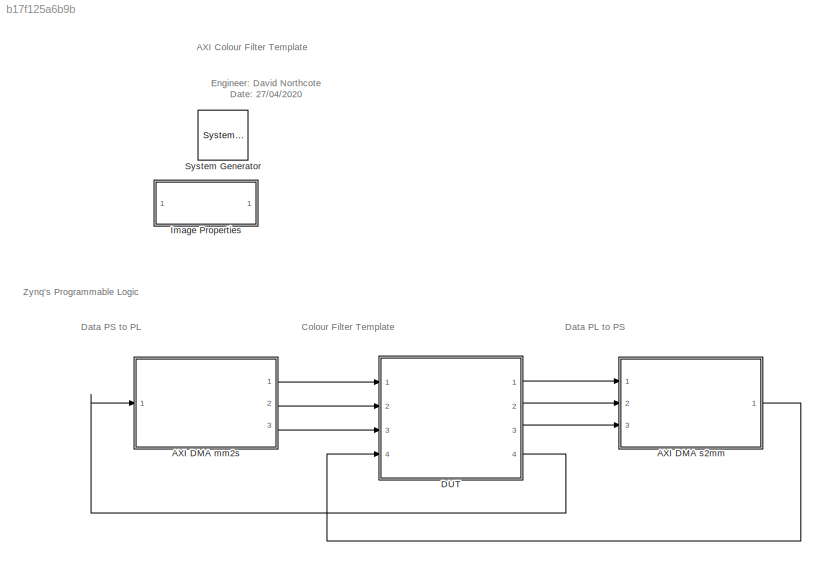
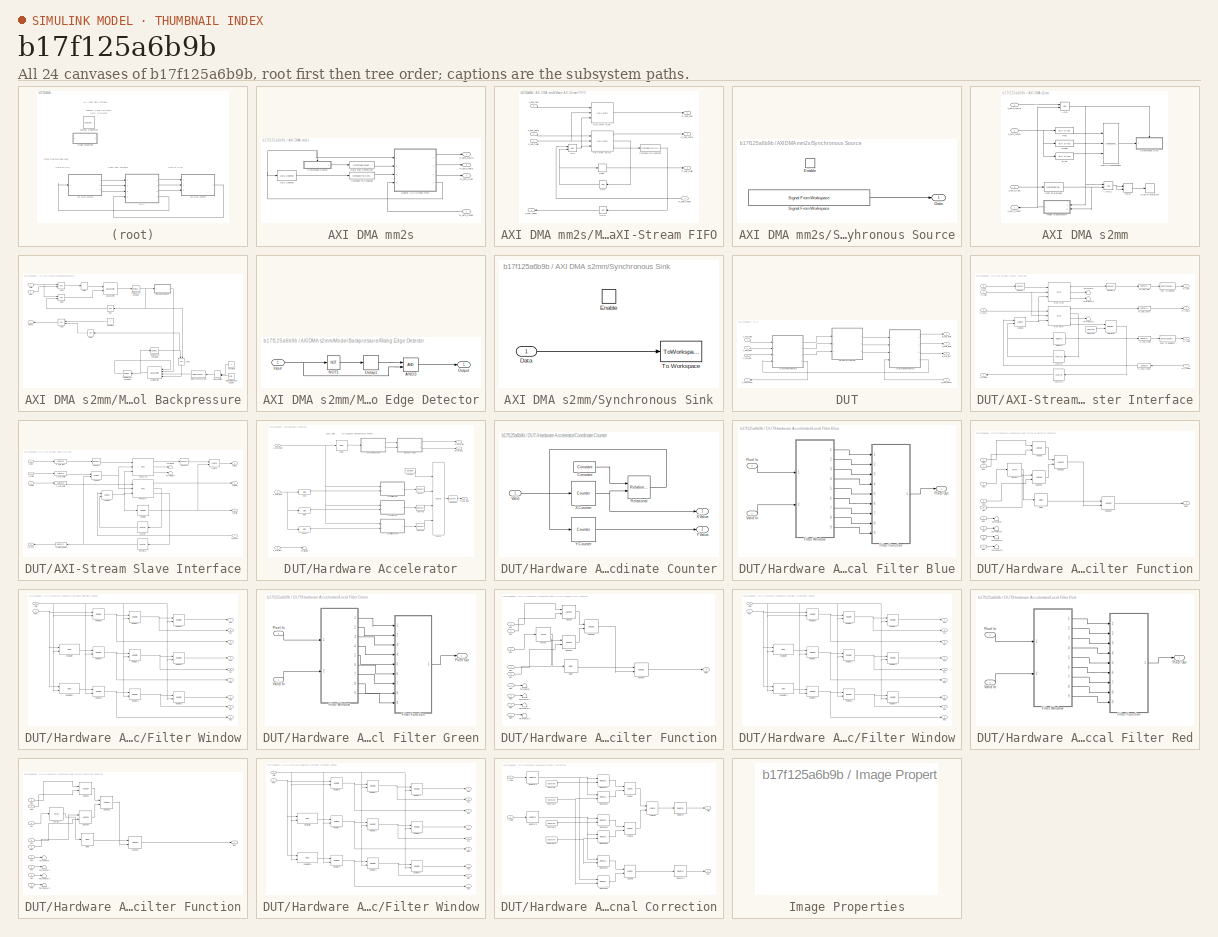
[diagram: thumbnail index - all 24 canvases of the model, root first then tree order]
MODEL slx_b17f125a6b9b
KIND model
CONFIG AbsTol = auto
CONFIG EnableMultiTasking = off
CONFIG FixedStep = auto
CONFIG InitFcn = height = str2num(get_param([bdroot, '/Image Properties'], 'height'));\nwidth = str2num(get_param([bdroot, '/Image Properties'], 'width'));\nI = imresize(eval(get_param([bdroot, '/Image Properties'], 'image')), [(height) (width)]);\nI = padarray(I, [1 1], 'replicate');\n% Change input array to RBG\ninarray = uint32(double(I(:,:,1))*2^16 + double(I(:,:,3))*2^8 + double(I(:,:,2)));
CONFIG MaxStep = auto
CONFIG MinStep = auto
CONFIG RelTol = 1e-3
CONFIG SampleTimeConstraint = Unconstrained
CONFIG Solver = VariableStepAuto
CONFIG SolverName = VariableStepAuto
CONFIG StartTime = 0.0
CONFIG StopFcn = Out = permute(reshape(simout, [3 width height]), [3 2 1]);\nimtool(Out);
CONFIG StopTime = inf
BLOCK [Reference]  System Generator  REF=xbsIndex_r4/ System Generator
  AttributesFormatString = System\nGenerator
  Ports = []
  SourceBlock = xbsIndex_r4/ System Generator
  SourceType = Xilinx System Generator Block
  Tag = genX
  UserDataPersistent = on
BLOCK [SubSystem] AXI DMA mm2s
  Ports = [1, 3]
  RequestExecContextInheritance = off
BLOCK [Reference] AXI DMA mm2s/Compare To Constant  REF=simulink/Logic and Bit
Operations/Compare
To Constant
  Ports = [1, 1]
  SourceBlock = simulink/Logic and Bit\nOperations/Compare\nTo Constant
  SourceProductBaseCode = SL
  SourceProductName = Simulink
  SourceType = Compare To Constant
BLOCK [DataTypeConversion] AXI DMA mm2s/Data Type Conversion
  ConvertRealWorld = Stored Integer (SI)
  OutDataTypeStr = fixdt(0, word, 0)
  RndMeth = Floor
  SaturateOnIntegerOverflow = off
BLOCK [Reference] AXI DMA mm2s/HDL Counter  REF=hdlsllib/Sources/HDL Counter
  Ports = [1, 1]
  SourceBlock = hdlsllib/Sources/HDL Counter
  SourceProductBaseCode = HD
  SourceProductName = HDL Coder
  SourceType = HDL Counter
BLOCK [SubSystem] AXI DMA mm2s/Master AXI-Stream FIFO
  Ports = [4, 4]
  RequestExecContextInheritance = off
BLOCK [Logic] AXI DMA mm2s/Master AXI-Stream FIFO/AND
  AllPortsSameDT = off
  IconShape = distinctive
  OutDataTypeStr = boolean
  Ports = [2, 1]
BLOCK [Reference] AXI DMA mm2s/Master AXI-Stream FIFO/Compare To Constant  REF=simulink/Logic and Bit
Operations/Compare
To Constant
  Ports = [1, 1]
  SourceBlock = simulink/Logic and Bit\nOperations/Compare\nTo Constant
  SourceProductBaseCode = SL
  SourceProductName = Simulink
  SourceType = Compare To Constant
BLOCK [Delay] AXI DMA mm2s/Master AXI-Stream FIFO/Delay
  DelayLength = 1
  InputPortMap = u0
  Ports = [1, 1]
BLOCK [Reference] AXI DMA mm2s/Master AXI-Stream FIFO/HDL FIFO TDATA  REF=hdlsllib/HDL RAMs/HDL FIFO
  Ports = [3, 3]
  SourceBlock = hdlsllib/HDL RAMs/HDL FIFO
  SourceProductBaseCode = HD
  SourceProductName = HDL Coder
  SourceType = HDL_FIFO
BLOCK [Reference] AXI DMA mm2s/Master AXI-Stream FIFO/HDL FIFO TLAST  REF=hdlsllib/HDL RAMs/HDL FIFO
  Ports = [3, 1]
  SourceBlock = hdlsllib/HDL RAMs/HDL FIFO
  SourceProductBaseCode = HD
  SourceProductName = HDL Coder
  SourceType = HDL_FIFO
BLOCK [Logic] AXI DMA mm2s/Master AXI-Stream FIFO/NOT
  AllPortsSameDT = off
  IconShape = distinctive
  Operator = NOT
  OutDataTypeStr = boolean
  Ports = [1, 1]
BLOCK [Logic] AXI DMA mm2s/Master AXI-Stream FIFO/NOT1
  AllPortsSameDT = off
  IconShape = distinctive
  Operator = NOT
  OutDataTypeStr = boolean
  Ports = [1, 1]
BLOCK [Outport] AXI DMA mm2s/Master AXI-Stream FIFO/m_axis_tdata
  IconDisplay = Port number
  Port = 2
BLOCK [Outport] AXI DMA mm2s/Master AXI-Stream FIFO/m_axis_tlast
  IconDisplay = Port number
  Port = 3
BLOCK [Inport] AXI DMA mm2s/Master AXI-Stream FIFO/m_axis_tready
  IconDisplay = Port number
  Port = 4
BLOCK [Outport] AXI DMA mm2s/Master AXI-Stream FIFO/m_axis_tvalid
  IconDisplay = Port number
BLOCK [Inport] AXI DMA mm2s/Master AXI-Stream FIFO/s_axis_tdata
  IconDisplay = Port number
  Port = 2
BLOCK [Inport] AXI DMA mm2s/Master AXI-Stream FIFO/s_axis_tlast
  IconDisplay = Port number
  Port = 3
BLOCK [Outport] AXI DMA mm2s/Master AXI-Stream FIFO/s_axis_tready
  IconDisplay = Port number
  Port = 4
BLOCK [Inport] AXI DMA mm2s/Master AXI-Stream FIFO/s_axis_tvalid
  IconDisplay = Port number
BLOCK [SubSystem] AXI DMA mm2s/Synchronous Source
  Ports = [0, 1, 1]
  RequestExecContextInheritance = off
  TreatAsAtomicUnit = on
BLOCK [Outport] AXI DMA mm2s/Synchronous Source/Data
  IconDisplay = Port number
BLOCK [EnablePort] AXI DMA mm2s/Synchronous Source/Enable
  Ports = []
BLOCK [Reference] AXI DMA mm2s/Synchronous Source/Signal From Workspace  REF=dspsrcs4/Signal From
Workspace
  Ports = [0, 1]
  SourceBlock = dspsrcs4/Signal From\nWorkspace
  SourceProductBaseCode = DS
  SourceProductName = DSP System Toolbox
  SourceType = Signal From Workspace
BLOCK [Outport] AXI DMA mm2s/m_axis_tdata
  IconDisplay = Port number
  Port = 2
BLOCK [Outport] AXI DMA mm2s/m_axis_tlast
  IconDisplay = Port number
  Port = 3
BLOCK [Inport] AXI DMA mm2s/m_axis_tready
  IconDisplay = Port number
BLOCK [Outport] AXI DMA mm2s/m_axis_tvalid
  IconDisplay = Port number
BLOCK [SubSystem] AXI DMA s2mm
  Ports = [3, 1]
  RequestExecContextInheritance = off
BLOCK [Logic] AXI DMA s2mm/AND
  AllPortsSameDT = off
  IconShape = distinctive
  OutDataTypeStr = boolean
  Ports = [2, 1]
BLOCK [Logic] AXI DMA s2mm/AND1
  AllPortsSameDT = off
  IconShape = distinctive
  OutDataTypeStr = boolean
  Ports = [2, 1]
BLOCK [Reference] AXI DMA s2mm/Blue  REF=hdlsllib/Logic and Bit
Operations/Bit Slice
  Ports = [1, 1]
  SourceBlock = hdlsllib/Logic and Bit\nOperations/Bit Slice
  SourceProductBaseCode = HD
  SourceProductName = HDL Coder
  SourceType = Bit Slice
BLOCK [DataTypeConversion] AXI DMA s2mm/Cast To Boolean
  OutDataTypeStr = boolean
  RndMeth = Floor
  SaturateOnIntegerOverflow = off
BLOCK [Delay] AXI DMA s2mm/Delay
  DelayLength = d
  InputPortMap = u0,e6
  Ports = [2, 1]
  ShowEnablePort = on
BLOCK [Reference] AXI DMA s2mm/Green  REF=hdlsllib/Logic and Bit
Operations/Bit Slice
  Ports = [1, 1]
  SourceBlock = hdlsllib/Logic and Bit\nOperations/Bit Slice
  SourceProductBaseCode = HD
  SourceProductName = HDL Coder
  SourceType = Bit Slice
BLOCK [Concatenate] AXI DMA s2mm/Matrix Concatenate
  Mode = Multidimensional array
  NumInputs = 3
  Ports = [3, 1]
BLOCK [SubSystem] AXI DMA s2mm/Model Backpressure
  Ports = [2, 1]
  RequestExecContextInheritance = off
BLOCK [Logic] AXI DMA s2mm/Model Backpressure/AND1
  AllPortsSameDT = off
  IconShape = distinctive
  OutDataTypeStr = boolean
  Ports = [2, 1]
BLOCK [Logic] AXI DMA s2mm/Model Backpressure/AND2
  AllPortsSameDT = off
  IconShape = distinctive
  OutDataTypeStr = boolean
  Ports = [2, 1]
BLOCK [Logic] AXI DMA s2mm/Model Backpressure/AND3
  AllPortsSameDT = off
  IconShape = distinctive
  OutDataTypeStr = boolean
  Ports = [2, 1]
BLOCK [Logic] AXI DMA s2mm/Model Backpressure/AND4
  AllPortsSameDT = off
  IconShape = distinctive
  OutDataTypeStr = boolean
  Ports = [2, 1]
BLOCK [Reference] AXI DMA s2mm/Model Backpressure/Compare To Constant  REF=simulink/Logic and Bit
Operations/Compare
To Constant
  Ports = [1, 1]
  SourceBlock = simulink/Logic and Bit\nOperations/Compare\nTo Constant
  SourceProductBaseCode = SL
  SourceProductName = Simulink
  SourceType = Compare To Constant
BLOCK [Reference] AXI DMA s2mm/Model Backpressure/Compare To Constant1  REF=simulink/Logic and Bit
Operations/Compare
To Constant
  Ports = [1, 1]
  SourceBlock = simulink/Logic and Bit\nOperations/Compare\nTo Constant
  SourceProductBaseCode = SL
  SourceProductName = Simulink
  SourceType = Compare To Constant
BLOCK [Reference] AXI DMA s2mm/Model Backpressure/Compare To Constant2  REF=simulink/Logic and Bit
Operations/Compare
To Constant
  Ports = [1, 1]
  SourceBlock = simulink/Logic and Bit\nOperations/Compare\nTo Constant
  SourceProductBaseCode = SL
  SourceProductName = Simulink
  SourceType = Compare To Constant
BLOCK [Constant] AXI DMA s2mm/Model Backpressure/Constant
  OutDataTypeStr = boolean
  SampleTime = rate
BLOCK [Constant] AXI DMA s2mm/Model Backpressure/Constant1
  OutDataTypeStr = fixdt(0, ceil(log2(120)), 0)
  SampleTime = rate
BLOCK [DataTypeConversion] AXI DMA s2mm/Model Backpressure/Data Type Conversion
  OutDataTypeStr = fixdt(0,ceil(log2(120)),0)
  RndMeth = Floor
  SaturateOnIntegerOverflow = off
BLOCK [Delay] AXI DMA s2mm/Model Backpressure/Delay
  DelayLength = 1
  InputPortMap = u0
  Ports = [1, 1]
BLOCK [Reference] AXI DMA s2mm/Model Backpressure/HDL Counter  REF=hdlsllib/Sources/HDL Counter
  Ports = [2, 1]
  SourceBlock = hdlsllib/Sources/HDL Counter
  SourceProductBaseCode = HD
  SourceProductName = HDL Coder
  SourceType = HDL Counter
BLOCK [Inport] AXI DMA s2mm/Model Backpressure/Last
  IconDisplay = Port number
  Port = 2
BLOCK [ManualSwitch] AXI DMA s2mm/Model Backpressure/Manual Switch
BLOCK [Logic] AXI DMA s2mm/Model Backpressure/NOT
  AllPortsSameDT = off
  IconShape = distinctive
  Operator = NOT
  OutDataTypeStr = boolean
  Ports = [1, 1]
BLOCK [Logic] AXI DMA s2mm/Model Backpressure/NOT1
  AllPortsSameDT = off
  IconShape = distinctive
  Operator = NOT
  OutDataTypeStr = boolean
  Ports = [1, 1]
BLOCK [Outport] AXI DMA s2mm/Model Backpressure/Ready
  IconDisplay = Port number
BLOCK [SubSystem] AXI DMA s2mm/Model Backpressure/Rising Edge Detector
  Ports = [1, 1]
  RequestExecContextInheritance = off
BLOCK [Logic] AXI DMA s2mm/Model Backpressure/Rising Edge Detector/AND3
  AllPortsSameDT = off
  IconShape = distinctive
  OutDataTypeStr = boolean
  Ports = [2, 1]
BLOCK [Delay] AXI DMA s2mm/Model Backpressure/Rising Edge Detector/Delay1
  DelayLength = 1
  InputPortMap = u0
  Ports = [1, 1]
BLOCK [Inport] AXI DMA s2mm/Model Backpressure/Rising Edge Detector/Input
  IconDisplay = Port number
BLOCK [Logic] AXI DMA s2mm/Model Backpressure/Rising Edge Detector/NOT1
  AllPortsSameDT = off
  IconShape = distinctive
  Operator = NOT
  OutDataTypeStr = boolean
  Ports = [1, 1]
BLOCK [Outport] AXI DMA s2mm/Model Backpressure/Rising Edge Detector/Output
  IconDisplay = Port number
BLOCK [UniformRandomNumber] AXI DMA s2mm/Model Backpressure/Uniform Random Number
  Maximum = 120-1
  Minimum = 0
  SampleTime = rate
  Seed = round(rand*10)
BLOCK [Inport] AXI DMA s2mm/Model Backpressure/Valid
  IconDisplay = Port number
BLOCK [Reference] AXI DMA s2mm/Model Backpressure/Wait Counter  REF=hdlsllib/Sources/HDL Counter
  Ports = [4, 1]
  SourceBlock = hdlsllib/Sources/HDL Counter
  SourceProductBaseCode = HD
  SourceProductName = HDL Coder
  SourceType = HDL Counter
BLOCK [Reference] AXI DMA s2mm/Red  REF=hdlsllib/Logic and Bit
Operations/Bit Slice
  Ports = [1, 1]
  SourceBlock = hdlsllib/Logic and Bit\nOperations/Bit Slice
  SourceProductBaseCode = HD
  SourceProductName = HDL Coder
  SourceType = Bit Slice
BLOCK [Stop] AXI DMA s2mm/Stop Simulation
BLOCK [SubSystem] AXI DMA s2mm/Synchronous Sink
  Ports = [1, 0, 1]
  RequestExecContextInheritance = off
  TreatAsAtomicUnit = on
BLOCK [Inport] AXI DMA s2mm/Synchronous Sink/Data
  IconDisplay = Port number
BLOCK [EnablePort] AXI DMA s2mm/Synchronous Sink/Enable
  Ports = []
BLOCK [ToWorkspace] AXI DMA s2mm/Synchronous Sink/To Workspace
  FixptAsFi = on
  MaxDataPoints = totalsize
  Ports = [1]
  SampleTime = -1
  Save2DSignal = 3-D array (concatenate along third dimension)
  VariableName = simout
BLOCK [Inport] AXI DMA s2mm/s_axis_tdata
  IconDisplay = Port number
  Port = 2
BLOCK [Inport] AXI DMA s2mm/s_axis_tlast
  IconDisplay = Port number
  Port = 3
BLOCK [Outport] AXI DMA s2mm/s_axis_tready
  IconDisplay = Port number
BLOCK [Inport] AXI DMA s2mm/s_axis_tvalid
  IconDisplay = Port number
BLOCK [SubSystem] DUT
  Ports = [4, 4]
  RequestExecContextInheritance = off
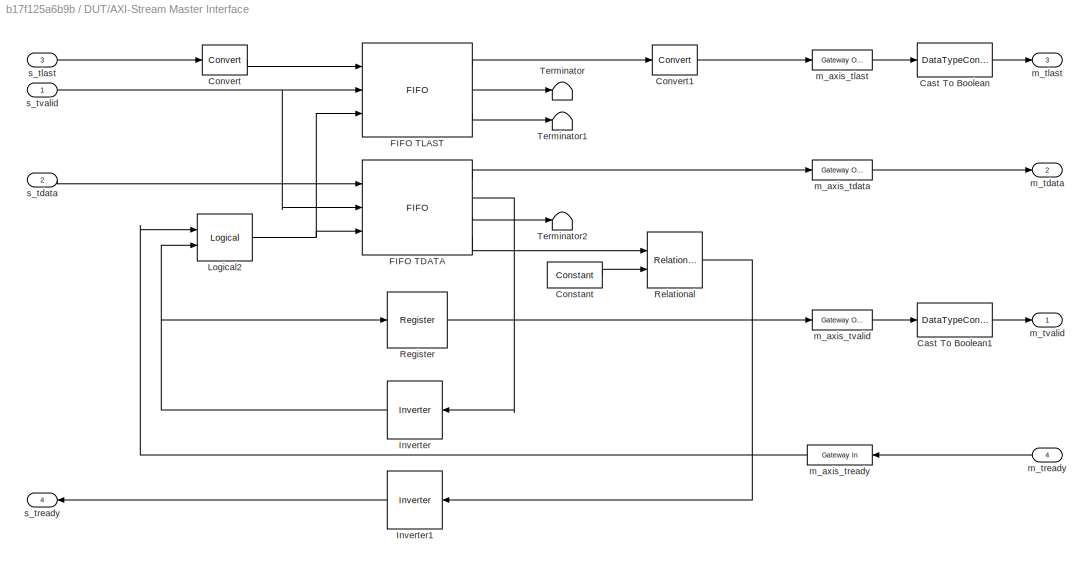
BLOCK [SubSystem] DUT/AXI-Stream Master Interface
  Ports = [4, 4]
  RequestExecContextInheritance = off
BLOCK [DataTypeConversion] DUT/AXI-Stream Master Interface/Cast To Boolean
  OutDataTypeStr = boolean
  RndMeth = Floor
  SaturateOnIntegerOverflow = off
BLOCK [DataTypeConversion] DUT/AXI-Stream Master Interface/Cast To Boolean1
  OutDataTypeStr = boolean
  RndMeth = Floor
  SaturateOnIntegerOverflow = off
BLOCK [Reference] DUT/AXI-Stream Master Interface/Constant  REF=xbsIndex_r4/Constant
  Ports = [0, 1]
  SourceBlock = xbsIndex_r4/Constant
  SourceType = Xilinx Constant Block Block
BLOCK [Reference] DUT/AXI-Stream Master Interface/Convert  REF=xbsIndex_r4/Convert
  Ports = [1, 1]
  SourceBlock = xbsIndex_r4/Convert
  SourceType = Xilinx Type Converter Block
BLOCK [Reference] DUT/AXI-Stream Master Interface/Convert1  REF=xbsIndex_r4/Convert
  Ports = [1, 1]
  SourceBlock = xbsIndex_r4/Convert
  SourceType = Xilinx Type Converter Block
BLOCK [Reference] DUT/AXI-Stream Master Interface/FIFO TDATA  REF=xbsIndex_r4/FIFO
  Ports = [3, 4]
  SourceBlock = xbsIndex_r4/FIFO
  SourceType = Xilinx FIFO Block Block
BLOCK [Reference] DUT/AXI-Stream Master Interface/FIFO TLAST  REF=xbsIndex_r4/FIFO
  Ports = [3, 3]
  SourceBlock = xbsIndex_r4/FIFO
  SourceType = Xilinx FIFO Block Block
BLOCK [Reference] DUT/AXI-Stream Master Interface/Inverter  REF=xbsIndex_r4/Inverter
  Ports = [1, 1]
  SourceBlock = xbsIndex_r4/Inverter
  SourceType = Xilinx Inverter Block
BLOCK [Reference] DUT/AXI-Stream Master Interface/Inverter1  REF=xbsIndex_r4/Inverter
  Ports = [1, 1]
  SourceBlock = xbsIndex_r4/Inverter
  SourceType = Xilinx Inverter Block
BLOCK [Reference] DUT/AXI-Stream Master Interface/Logical2  REF=xbsIndex_r4/Logical
  Ports = [2, 1]
  SourceBlock = xbsIndex_r4/Logical
  SourceType = Xilinx Logical Block Block
BLOCK [Reference] DUT/AXI-Stream Master Interface/Register  REF=xbsIndex_r4/Register
  Ports = [1, 1]
  SourceBlock = xbsIndex_r4/Register
  SourceType = Xilinx Register Block
BLOCK [Reference] DUT/AXI-Stream Master Interface/Relational  REF=xbsIndex_r4/Relational
  Ports = [2, 1]
  SourceBlock = xbsIndex_r4/Relational
  SourceType = Xilinx Arithmetic Relational Operator Block
BLOCK [Terminator] DUT/AXI-Stream Master Interface/Terminator
BLOCK [Terminator] DUT/AXI-Stream Master Interface/Terminator1
BLOCK [Terminator] DUT/AXI-Stream Master Interface/Terminator2
BLOCK [Reference] DUT/AXI-Stream Master Interface/m_axis_tdata  REF=xbsIndex_r4/Gateway Out
  Ports = [1, 1]
  SourceBlock = xbsIndex_r4/Gateway Out
  SourceType = Xilinx Gateway Out Block
BLOCK [Reference] DUT/AXI-Stream Master Interface/m_axis_tlast  REF=xbsIndex_r4/Gateway Out
  Ports = [1, 1]
  SourceBlock = xbsIndex_r4/Gateway Out
  SourceType = Xilinx Gateway Out Block
BLOCK [Reference] DUT/AXI-Stream Master Interface/m_axis_tready  REF=xbsIndex_r4/Gateway In
  Ports = [1, 1]
  SourceBlock = xbsIndex_r4/Gateway In
  SourceType = Xilinx Gateway In Block
BLOCK [Reference] DUT/AXI-Stream Master Interface/m_axis_tvalid  REF=xbsIndex_r4/Gateway Out
  Ports = [1, 1]
  SourceBlock = xbsIndex_r4/Gateway Out
  SourceType = Xilinx Gateway Out Block
BLOCK [Outport] DUT/AXI-Stream Master Interface/m_tdata
  IconDisplay = Port number
  Port = 2
BLOCK [Outport] DUT/AXI-Stream Master Interface/m_tlast
  IconDisplay = Port number
  Port = 3
BLOCK [Inport] DUT/AXI-Stream Master Interface/m_tready
  IconDisplay = Port number
  Port = 4
BLOCK [Outport] DUT/AXI-Stream Master Interface/m_tvalid
  IconDisplay = Port number
BLOCK [Inport] DUT/AXI-Stream Master Interface/s_tdata
  IconDisplay = Port number
  Port = 2
BLOCK [Inport] DUT/AXI-Stream Master Interface/s_tlast
  IconDisplay = Port number
  Port = 3
BLOCK [Outport] DUT/AXI-Stream Master Interface/s_tready
  IconDisplay = Port number
  Port = 4
BLOCK [Inport] DUT/AXI-Stream Master Interface/s_tvalid
  IconDisplay = Port number
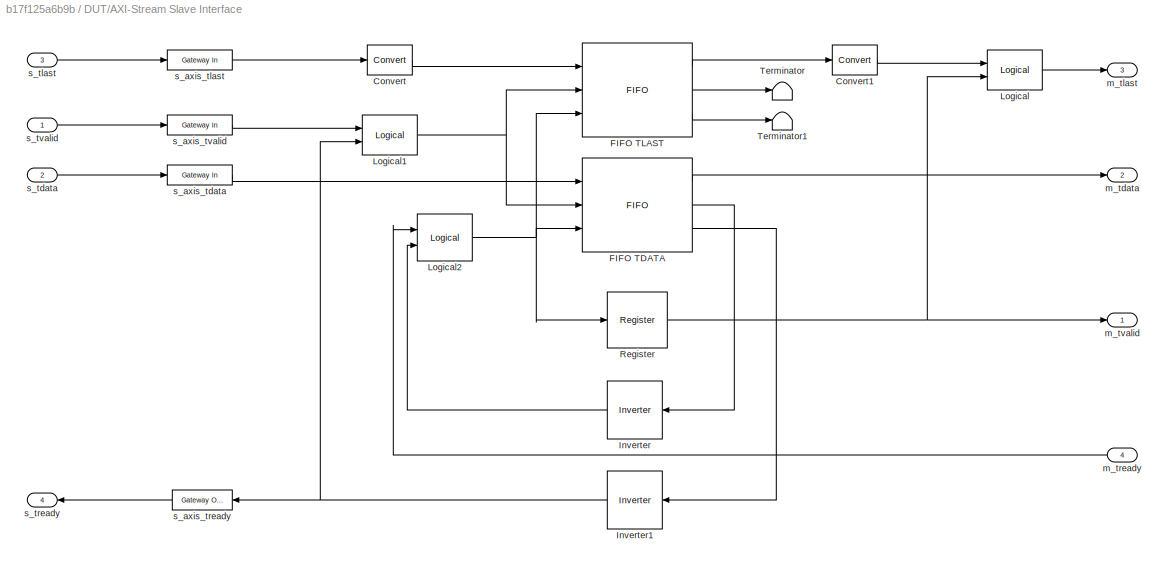
BLOCK [SubSystem] DUT/AXI-Stream Slave Interface
  Ports = [4, 4]
  RequestExecContextInheritance = off
BLOCK [Reference] DUT/AXI-Stream Slave Interface/Convert  REF=xbsIndex_r4/Convert
  Ports = [1, 1]
  SourceBlock = xbsIndex_r4/Convert
  SourceType = Xilinx Type Converter Block
BLOCK [Reference] DUT/AXI-Stream Slave Interface/Convert1  REF=xbsIndex_r4/Convert
  Ports = [1, 1]
  SourceBlock = xbsIndex_r4/Convert
  SourceType = Xilinx Type Converter Block
BLOCK [Reference] DUT/AXI-Stream Slave Interface/FIFO TDATA  REF=xbsIndex_r4/FIFO
  Ports = [3, 3]
  SourceBlock = xbsIndex_r4/FIFO
  SourceType = Xilinx FIFO Block Block
BLOCK [Reference] DUT/AXI-Stream Slave Interface/FIFO TLAST  REF=xbsIndex_r4/FIFO
  Ports = [3, 3]
  SourceBlock = xbsIndex_r4/FIFO
  SourceType = Xilinx FIFO Block Block
BLOCK [Reference] DUT/AXI-Stream Slave Interface/Inverter  REF=xbsIndex_r4/Inverter
  Ports = [1, 1]
  SourceBlock = xbsIndex_r4/Inverter
  SourceType = Xilinx Inverter Block
BLOCK [Reference] DUT/AXI-Stream Slave Interface/Inverter1  REF=xbsIndex_r4/Inverter
  Ports = [1, 1]
  SourceBlock = xbsIndex_r4/Inverter
  SourceType = Xilinx Inverter Block
BLOCK [Reference] DUT/AXI-Stream Slave Interface/Logical  REF=xbsIndex_r4/Logical
  Ports = [2, 1]
  SourceBlock = xbsIndex_r4/Logical
  SourceType = Xilinx Logical Block Block
BLOCK [Reference] DUT/AXI-Stream Slave Interface/Logical1  REF=xbsIndex_r4/Logical
  Ports = [2, 1]
  SourceBlock = xbsIndex_r4/Logical
  SourceType = Xilinx Logical Block Block
BLOCK [Reference] DUT/AXI-Stream Slave Interface/Logical2  REF=xbsIndex_r4/Logical
  Ports = [2, 1]
  SourceBlock = xbsIndex_r4/Logical
  SourceType = Xilinx Logical Block Block
BLOCK [Reference] DUT/AXI-Stream Slave Interface/Register  REF=xbsIndex_r4/Register
  Ports = [1, 1]
  SourceBlock = xbsIndex_r4/Register
  SourceType = Xilinx Register Block
BLOCK [Terminator] DUT/AXI-Stream Slave Interface/Terminator
BLOCK [Terminator] DUT/AXI-Stream Slave Interface/Terminator1
BLOCK [Outport] DUT/AXI-Stream Slave Interface/m_tdata
  IconDisplay = Port number
  Port = 2
BLOCK [Outport] DUT/AXI-Stream Slave Interface/m_tlast
  IconDisplay = Port number
  Port = 3
BLOCK [Inport] DUT/AXI-Stream Slave Interface/m_tready
  IconDisplay = Port number
  Port = 4
BLOCK [Outport] DUT/AXI-Stream Slave Interface/m_tvalid
  IconDisplay = Port number
BLOCK [Reference] DUT/AXI-Stream Slave Interface/s_axis_tdata  REF=xbsIndex_r4/Gateway In
  Ports = [1, 1]
  SourceBlock = xbsIndex_r4/Gateway In
  SourceType = Xilinx Gateway In Block
BLOCK [Reference] DUT/AXI-Stream Slave Interface/s_axis_tlast  REF=xbsIndex_r4/Gateway In
  Ports = [1, 1]
  SourceBlock = xbsIndex_r4/Gateway In
  SourceType = Xilinx Gateway In Block
BLOCK [Reference] DUT/AXI-Stream Slave Interface/s_axis_tready  REF=xbsIndex_r4/Gateway Out
  Ports = [1, 1]
  SourceBlock = xbsIndex_r4/Gateway Out
  SourceType = Xilinx Gateway Out Block
BLOCK [Reference] DUT/AXI-Stream Slave Interface/s_axis_tvalid  REF=xbsIndex_r4/Gateway In
  Ports = [1, 1]
  SourceBlock = xbsIndex_r4/Gateway In
  SourceType = Xilinx Gateway In Block
BLOCK [Inport] DUT/AXI-Stream Slave Interface/s_tdata
  IconDisplay = Port number
  Port = 2
BLOCK [Inport] DUT/AXI-Stream Slave Interface/s_tlast
  IconDisplay = Port number
  Port = 3
BLOCK [Outport] DUT/AXI-Stream Slave Interface/s_tready
  IconDisplay = Port number
  Port = 4
BLOCK [Inport] DUT/AXI-Stream Slave Interface/s_tvalid
  IconDisplay = Port number
BLOCK [SubSystem] DUT/Hardware Accelerator
  Ports = [3, 3]
  RequestExecContextInheritance = off
BLOCK [Reference] DUT/Hardware Accelerator/Blue  REF=xbsIndex_r4/Slice
  Ports = [1, 1]
  SourceBlock = xbsIndex_r4/Slice
  SourceType = Xilinx Bit Slice Extractor Block
BLOCK [Reference] DUT/Hardware Accelerator/Concat  REF=xbsIndex_r4/Concat
  Ports = [4, 1]
  SourceBlock = xbsIndex_r4/Concat
  SourceType = Xilinx Bus Concatenator Block
BLOCK [Reference] DUT/Hardware Accelerator/Constant  REF=xbsIndex_r4/Constant
  Ports = [0, 1]
  SourceBlock = xbsIndex_r4/Constant
  SourceType = Xilinx Constant Block Block
BLOCK [Reference] DUT/Hardware Accelerator/Convert  REF=xbsIndex_r4/Convert
  Ports = [1, 1]
  SourceBlock = xbsIndex_r4/Convert
  SourceType = Xilinx Type Converter Block
BLOCK [Reference] DUT/Hardware Accelerator/Convert1  REF=xbsIndex_r4/Convert
  Ports = [1, 1]
  SourceBlock = xbsIndex_r4/Convert
  SourceType = Xilinx Type Converter Block
BLOCK [Reference] DUT/Hardware Accelerator/Convert2  REF=xbsIndex_r4/Convert
  Ports = [1, 1]
  SourceBlock = xbsIndex_r4/Convert
  SourceType = Xilinx Type Converter Block
BLOCK [Reference] DUT/Hardware Accelerator/Convert3  REF=xbsIndex_r4/Convert
  Ports = [1, 1]
  SourceBlock = xbsIndex_r4/Convert
  SourceType = Xilinx Type Converter Block
BLOCK [SubSystem] DUT/Hardware Accelerator/Coordinate Counter
  Ports = [1, 2]
  RequestExecContextInheritance = off
BLOCK [Reference] DUT/Hardware Accelerator/Coordinate Counter/Constant  REF=xbsIndex_r4/Constant
  Ports = [0, 1]
  SourceBlock = xbsIndex_r4/Constant
  SourceType = Xilinx Constant Block Block
BLOCK [Reference] DUT/Hardware Accelerator/Coordinate Counter/Relational  REF=xbsIndex_r4/Relational
  Ports = [2, 1]
  SourceBlock = xbsIndex_r4/Relational
  SourceType = Xilinx Arithmetic Relational Operator Block
BLOCK [Inport] DUT/Hardware Accelerator/Coordinate Counter/Valid
  IconDisplay = Port number
BLOCK [Reference] DUT/Hardware Accelerator/Coordinate Counter/X Counter  REF=xbsIndex_r4/Counter
  Ports = [1, 1]
  SourceBlock = xbsIndex_r4/Counter
  SourceType = Xilinx Counter Block
BLOCK [Outport] DUT/Hardware Accelerator/Coordinate Counter/X Value
  IconDisplay = Port number
BLOCK [Reference] DUT/Hardware Accelerator/Coordinate Counter/Y Counter  REF=xbsIndex_r4/Counter
  Ports = [1, 1]
  SourceBlock = xbsIndex_r4/Counter
  SourceType = Xilinx Counter Block
BLOCK [Outport] DUT/Hardware Accelerator/Coordinate Counter/Y Value
  IconDisplay = Port number
  Port = 2
BLOCK [Reference] DUT/Hardware Accelerator/Delay  REF=xbsIndex_r4/Delay
  Ports = [1, 1]
  SourceBlock = xbsIndex_r4/Delay
  SourceType = Xilinx Delay Block
BLOCK [Reference] DUT/Hardware Accelerator/Green  REF=xbsIndex_r4/Slice
  Ports = [1, 1]
  SourceBlock = xbsIndex_r4/Slice
  SourceType = Xilinx Bit Slice Extractor Block
BLOCK [SubSystem] DUT/Hardware Accelerator/Local Filter Blue
  Ports = [2, 1]
  RequestExecContextInheritance = off
BLOCK [SubSystem] DUT/Hardware Accelerator/Local Filter Blue/Filter Function
  Ports = [9, 1]
  RequestExecContextInheritance = off
BLOCK [Reference] DUT/Hardware Accelerator/Local Filter Blue/Filter Function/AddSub  REF=xbsIndex_r4/AddSub
  Ports = [2, 1]
  SourceBlock = xbsIndex_r4/AddSub
  SourceType = Xilinx Adder/Subtracter Block
BLOCK [Reference] DUT/Hardware Accelerator/Local Filter Blue/Filter Function/AddSub2  REF=xbsIndex_r4/AddSub
  Ports = [2, 1]
  SourceBlock = xbsIndex_r4/AddSub
  SourceType = Xilinx Adder/Subtracter Block
BLOCK [Reference] DUT/Hardware Accelerator/Local Filter Blue/Filter Function/AddSub4  REF=xbsIndex_r4/AddSub
  Ports = [2, 1]
  SourceBlock = xbsIndex_r4/AddSub
  SourceType = Xilinx Adder/Subtracter Block
BLOCK [Reference] DUT/Hardware Accelerator/Local Filter Blue/Filter Function/AddSub7  REF=xbsIndex_r4/AddSub
  Ports = [2, 1]
  SourceBlock = xbsIndex_r4/AddSub
  SourceType = Xilinx Adder/Subtracter Block
BLOCK [Reference] DUT/Hardware Accelerator/Local Filter Blue/Filter Function/CMult2  REF=xbsIndex_r4/CMult
  Ports = [1, 1]
  SourceBlock = xbsIndex_r4/CMult
  SourceType = Xilinx Constant Multiplier Block
BLOCK [Reference] DUT/Hardware Accelerator/Local Filter Blue/Filter Function/Delay  REF=xbsIndex_r4/Delay
  Ports = [1, 1]
  SourceBlock = xbsIndex_r4/Delay
  SourceType = Xilinx Delay Block
BLOCK [Outport] DUT/Hardware Accelerator/Local Filter Blue/Filter Function/Pixel
  IconDisplay = Port number
BLOCK [Terminator] DUT/Hardware Accelerator/Local Filter Blue/Filter Function/Terminator
BLOCK [Terminator] DUT/Hardware Accelerator/Local Filter Blue/Filter Function/Terminator1
BLOCK [Terminator] DUT/Hardware Accelerator/Local Filter Blue/Filter Function/Terminator2
BLOCK [Terminator] DUT/Hardware Accelerator/Local Filter Blue/Filter Function/Terminator3
BLOCK [Inport] DUT/Hardware Accelerator/Local Filter Blue/Filter Function/w00
  IconDisplay = Port number
BLOCK [Inport] DUT/Hardware Accelerator/Local Filter Blue/Filter Function/w01
  IconDisplay = Port number
  Port = 2
BLOCK [Inport] DUT/Hardware Accelerator/Local Filter Blue/Filter Function/w02
  IconDisplay = Port number
  Port = 3
BLOCK [Inport] DUT/Hardware Accelerator/Local Filter Blue/Filter Function/w10
  IconDisplay = Port number
  Port = 4
BLOCK [Inport] DUT/Hardware Accelerator/Local Filter Blue/Filter Function/w11
  IconDisplay = Port number
  Port = 5
BLOCK [Inport] DUT/Hardware Accelerator/Local Filter Blue/Filter Function/w12
  IconDisplay = Port number
  Port = 6
BLOCK [Inport] DUT/Hardware Accelerator/Local Filter Blue/Filter Function/w20
  IconDisplay = Port number
  Port = 7
BLOCK [Inport] DUT/Hardware Accelerator/Local Filter Blue/Filter Function/w21
  IconDisplay = Port number
  Port = 8
BLOCK [Inport] DUT/Hardware Accelerator/Local Filter Blue/Filter Function/w22
  IconDisplay = Port number
  Port = 9
BLOCK [SubSystem] DUT/Hardware Accelerator/Local Filter Blue/Filter Window
  Ports = [2, 9]
  RequestExecContextInheritance = off
BLOCK [Inport] DUT/Hardware Accelerator/Local Filter Blue/Filter Window/Pixel
  IconDisplay = Port number
BLOCK [Reference] DUT/Hardware Accelerator/Local Filter Blue/Filter Window/Register1  REF=xbsIndex_r4/Register
  Ports = [2, 1]
  SourceBlock = xbsIndex_r4/Register
  SourceType = Xilinx Register Block
BLOCK [Reference] DUT/Hardware Accelerator/Local Filter Blue/Filter Window/Register2  REF=xbsIndex_r4/Register
  Ports = [2, 1]
  SourceBlock = xbsIndex_r4/Register
  SourceType = Xilinx Register Block
BLOCK [Reference] DUT/Hardware Accelerator/Local Filter Blue/Filter Window/Register3  REF=xbsIndex_r4/Register
  Ports = [2, 1]
  SourceBlock = xbsIndex_r4/Register
  SourceType = Xilinx Register Block
BLOCK [Reference] DUT/Hardware Accelerator/Local Filter Blue/Filter Window/Register4  REF=xbsIndex_r4/Register
  Ports = [2, 1]
  SourceBlock = xbsIndex_r4/Register
  SourceType = Xilinx Register Block
BLOCK [Reference] DUT/Hardware Accelerator/Local Filter Blue/Filter Window/Register5  REF=xbsIndex_r4/Register
  Ports = [2, 1]
  SourceBlock = xbsIndex_r4/Register
  SourceType = Xilinx Register Block
BLOCK [Reference] DUT/Hardware Accelerator/Local Filter Blue/Filter Window/Register6  REF=xbsIndex_r4/Register
  Ports = [2, 1]
  SourceBlock = xbsIndex_r4/Register
  SourceType = Xilinx Register Block
BLOCK [Reference] DUT/Hardware Accelerator/Local Filter Blue/Filter Window/Register7  REF=xbsIndex_r4/Register
  Ports = [2, 1]
  SourceBlock = xbsIndex_r4/Register
  SourceType = Xilinx Register Block
BLOCK [Reference] DUT/Hardware Accelerator/Local Filter Blue/Filter Window/Register8  REF=xbsIndex_r4/Register
  Ports = [2, 1]
  SourceBlock = xbsIndex_r4/Register
  SourceType = Xilinx Register Block
BLOCK [Reference] DUT/Hardware Accelerator/Local Filter Blue/Filter Window/Register9  REF=xbsIndex_r4/Register
  Ports = [2, 1]
  SourceBlock = xbsIndex_r4/Register
  SourceType = Xilinx Register Block
BLOCK [Reference] DUT/Hardware Accelerator/Local Filter Blue/Filter Window/Row Buffer  REF=xbsIndex_r4/Delay
  Ports = [2, 1]
  SourceBlock = xbsIndex_r4/Delay
  SourceType = Xilinx Delay Block
BLOCK [Reference] DUT/Hardware Accelerator/Local Filter Blue/Filter Window/Row Buffer1  REF=xbsIndex_r4/Delay
  Ports = [2, 1]
  SourceBlock = xbsIndex_r4/Delay
  SourceType = Xilinx Delay Block
BLOCK [Inport] DUT/Hardware Accelerator/Local Filter Blue/Filter Window/Valid
  IconDisplay = Port number
  Port = 2
BLOCK [Outport] DUT/Hardware Accelerator/Local Filter Blue/Filter Window/w00
  IconDisplay = Port number
BLOCK [Outport] DUT/Hardware Accelerator/Local Filter Blue/Filter Window/w01
  IconDisplay = Port number
  Port = 2
BLOCK [Outport] DUT/Hardware Accelerator/Local Filter Blue/Filter Window/w02
  IconDisplay = Port number
  Port = 3
BLOCK [Outport] DUT/Hardware Accelerator/Local Filter Blue/Filter Window/w10
  IconDisplay = Port number
  Port = 4
BLOCK [Outport] DUT/Hardware Accelerator/Local Filter Blue/Filter Window/w11
  IconDisplay = Port number
  Port = 5
BLOCK [Outport] DUT/Hardware Accelerator/Local Filter Blue/Filter Window/w12
  IconDisplay = Port number
  Port = 6
BLOCK [Outport] DUT/Hardware Accelerator/Local Filter Blue/Filter Window/w20
  IconDisplay = Port number
  Port = 7
BLOCK [Outport] DUT/Hardware Accelerator/Local Filter Blue/Filter Window/w21
  IconDisplay = Port number
  Port = 8
BLOCK [Outport] DUT/Hardware Accelerator/Local Filter Blue/Filter Window/w22
  IconDisplay = Port number
  Port = 9
BLOCK [Inport] DUT/Hardware Accelerator/Local Filter Blue/Pixel In
  IconDisplay = Port number
  Port = 2
BLOCK [Outport] DUT/Hardware Accelerator/Local Filter Blue/Pixel Out
  IconDisplay = Port number
BLOCK [Inport] DUT/Hardware Accelerator/Local Filter Blue/Valid In
  IconDisplay = Port number
BLOCK [SubSystem] DUT/Hardware Accelerator/Local Filter Green
  Ports = [2, 1]
  RequestExecContextInheritance = off
BLOCK [SubSystem] DUT/Hardware Accelerator/Local Filter Green/Filter Function
  Ports = [9, 1]
  RequestExecContextInheritance = off
BLOCK [Reference] DUT/Hardware Accelerator/Local Filter Green/Filter Function/AddSub  REF=xbsIndex_r4/AddSub
  Ports = [2, 1]
  SourceBlock = xbsIndex_r4/AddSub
  SourceType = Xilinx Adder/Subtracter Block
BLOCK [Reference] DUT/Hardware Accelerator/Local Filter Green/Filter Function/AddSub2  REF=xbsIndex_r4/AddSub
  Ports = [2, 1]
  SourceBlock = xbsIndex_r4/AddSub
  SourceType = Xilinx Adder/Subtracter Block
BLOCK [Reference] DUT/Hardware Accelerator/Local Filter Green/Filter Function/AddSub4  REF=xbsIndex_r4/AddSub
  Ports = [2, 1]
  SourceBlock = xbsIndex_r4/AddSub
  SourceType = Xilinx Adder/Subtracter Block
BLOCK [Reference] DUT/Hardware Accelerator/Local Filter Green/Filter Function/AddSub7  REF=xbsIndex_r4/AddSub
  Ports = [2, 1]
  SourceBlock = xbsIndex_r4/AddSub
  SourceType = Xilinx Adder/Subtracter Block
BLOCK [Reference] DUT/Hardware Accelerator/Local Filter Green/Filter Function/CMult2  REF=xbsIndex_r4/CMult
  Ports = [1, 1]
  SourceBlock = xbsIndex_r4/CMult
  SourceType = Xilinx Constant Multiplier Block
BLOCK [Reference] DUT/Hardware Accelerator/Local Filter Green/Filter Function/Delay  REF=xbsIndex_r4/Delay
  Ports = [1, 1]
  SourceBlock = xbsIndex_r4/Delay
  SourceType = Xilinx Delay Block
BLOCK [Outport] DUT/Hardware Accelerator/Local Filter Green/Filter Function/Pixel
  IconDisplay = Port number
BLOCK [Terminator] DUT/Hardware Accelerator/Local Filter Green/Filter Function/Terminator
BLOCK [Terminator] DUT/Hardware Accelerator/Local Filter Green/Filter Function/Terminator1
BLOCK [Terminator] DUT/Hardware Accelerator/Local Filter Green/Filter Function/Terminator2
BLOCK [Terminator] DUT/Hardware Accelerator/Local Filter Green/Filter Function/Terminator3
BLOCK [Inport] DUT/Hardware Accelerator/Local Filter Green/Filter Function/w00
  IconDisplay = Port number
BLOCK [Inport] DUT/Hardware Accelerator/Local Filter Green/Filter Function/w01
  IconDisplay = Port number
  Port = 2
BLOCK [Inport] DUT/Hardware Accelerator/Local Filter Green/Filter Function/w02
  IconDisplay = Port number
  Port = 3
BLOCK [Inport] DUT/Hardware Accelerator/Local Filter Green/Filter Function/w10
  IconDisplay = Port number
  Port = 4
BLOCK [Inport] DUT/Hardware Accelerator/Local Filter Green/Filter Function/w11
  IconDisplay = Port number
  Port = 5
BLOCK [Inport] DUT/Hardware Accelerator/Local Filter Green/Filter Function/w12
  IconDisplay = Port number
  Port = 6
BLOCK [Inport] DUT/Hardware Accelerator/Local Filter Green/Filter Function/w20
  IconDisplay = Port number
  Port = 7
BLOCK [Inport] DUT/Hardware Accelerator/Local Filter Green/Filter Function/w21
  IconDisplay = Port number
  Port = 8
BLOCK [Inport] DUT/Hardware Accelerator/Local Filter Green/Filter Function/w22
  IconDisplay = Port number
  Port = 9
BLOCK [SubSystem] DUT/Hardware Accelerator/Local Filter Green/Filter Window
  Ports = [2, 9]
  RequestExecContextInheritance = off
BLOCK [Inport] DUT/Hardware Accelerator/Local Filter Green/Filter Window/Pixel
  IconDisplay = Port number
BLOCK [Reference] DUT/Hardware Accelerator/Local Filter Green/Filter Window/Register1  REF=xbsIndex_r4/Register
  Ports = [2, 1]
  SourceBlock = xbsIndex_r4/Register
  SourceType = Xilinx Register Block
BLOCK [Reference] DUT/Hardware Accelerator/Local Filter Green/Filter Window/Register2  REF=xbsIndex_r4/Register
  Ports = [2, 1]
  SourceBlock = xbsIndex_r4/Register
  SourceType = Xilinx Register Block
BLOCK [Reference] DUT/Hardware Accelerator/Local Filter Green/Filter Window/Register3  REF=xbsIndex_r4/Register
  Ports = [2, 1]
  SourceBlock = xbsIndex_r4/Register
  SourceType = Xilinx Register Block
BLOCK [Reference] DUT/Hardware Accelerator/Local Filter Green/Filter Window/Register4  REF=xbsIndex_r4/Register
  Ports = [2, 1]
  SourceBlock = xbsIndex_r4/Register
  SourceType = Xilinx Register Block
BLOCK [Reference] DUT/Hardware Accelerator/Local Filter Green/Filter Window/Register5  REF=xbsIndex_r4/Register
  Ports = [2, 1]
  SourceBlock = xbsIndex_r4/Register
  SourceType = Xilinx Register Block
BLOCK [Reference] DUT/Hardware Accelerator/Local Filter Green/Filter Window/Register6  REF=xbsIndex_r4/Register
  Ports = [2, 1]
  SourceBlock = xbsIndex_r4/Register
  SourceType = Xilinx Register Block
BLOCK [Reference] DUT/Hardware Accelerator/Local Filter Green/Filter Window/Register7  REF=xbsIndex_r4/Register
  Ports = [2, 1]
  SourceBlock = xbsIndex_r4/Register
  SourceType = Xilinx Register Block
BLOCK [Reference] DUT/Hardware Accelerator/Local Filter Green/Filter Window/Register8  REF=xbsIndex_r4/Register
  Ports = [2, 1]
  SourceBlock = xbsIndex_r4/Register
  SourceType = Xilinx Register Block
BLOCK [Reference] DUT/Hardware Accelerator/Local Filter Green/Filter Window/Register9  REF=xbsIndex_r4/Register
  Ports = [2, 1]
  SourceBlock = xbsIndex_r4/Register
  SourceType = Xilinx Register Block
BLOCK [Reference] DUT/Hardware Accelerator/Local Filter Green/Filter Window/Row Buffer  REF=xbsIndex_r4/Delay
  Ports = [2, 1]
  SourceBlock = xbsIndex_r4/Delay
  SourceType = Xilinx Delay Block
BLOCK [Reference] DUT/Hardware Accelerator/Local Filter Green/Filter Window/Row Buffer1  REF=xbsIndex_r4/Delay
  Ports = [2, 1]
  SourceBlock = xbsIndex_r4/Delay
  SourceType = Xilinx Delay Block
BLOCK [Inport] DUT/Hardware Accelerator/Local Filter Green/Filter Window/Valid
  IconDisplay = Port number
  Port = 2
BLOCK [Outport] DUT/Hardware Accelerator/Local Filter Green/Filter Window/w00
  IconDisplay = Port number
BLOCK [Outport] DUT/Hardware Accelerator/Local Filter Green/Filter Window/w01
  IconDisplay = Port number
  Port = 2
BLOCK [Outport] DUT/Hardware Accelerator/Local Filter Green/Filter Window/w02
  IconDisplay = Port number
  Port = 3
BLOCK [Outport] DUT/Hardware Accelerator/Local Filter Green/Filter Window/w10
  IconDisplay = Port number
  Port = 4
BLOCK [Outport] DUT/Hardware Accelerator/Local Filter Green/Filter Window/w11
  IconDisplay = Port number
  Port = 5
BLOCK [Outport] DUT/Hardware Accelerator/Local Filter Green/Filter Window/w12
  IconDisplay = Port number
  Port = 6
BLOCK [Outport] DUT/Hardware Accelerator/Local Filter Green/Filter Window/w20
  IconDisplay = Port number
  Port = 7
BLOCK [Outport] DUT/Hardware Accelerator/Local Filter Green/Filter Window/w21
  IconDisplay = Port number
  Port = 8
BLOCK [Outport] DUT/Hardware Accelerator/Local Filter Green/Filter Window/w22
  IconDisplay = Port number
  Port = 9
BLOCK [Inport] DUT/Hardware Accelerator/Local Filter Green/Pixel In
  IconDisplay = Port number
  Port = 2
BLOCK [Outport] DUT/Hardware Accelerator/Local Filter Green/Pixel Out
  IconDisplay = Port number
BLOCK [Inport] DUT/Hardware Accelerator/Local Filter Green/Valid In
  IconDisplay = Port number
BLOCK [SubSystem] DUT/Hardware Accelerator/Local Filter Red
  Ports = [2, 1]
  RequestExecContextInheritance = off
BLOCK [SubSystem] DUT/Hardware Accelerator/Local Filter Red/Filter Function
  Ports = [9, 1]
  RequestExecContextInheritance = off
BLOCK [Reference] DUT/Hardware Accelerator/Local Filter Red/Filter Function/AddSub  REF=xbsIndex_r4/AddSub
  Ports = [2, 1]
  SourceBlock = xbsIndex_r4/AddSub
  SourceType = Xilinx Adder/Subtracter Block
BLOCK [Reference] DUT/Hardware Accelerator/Local Filter Red/Filter Function/AddSub1  REF=xbsIndex_r4/AddSub
  Ports = [2, 1]
  SourceBlock = xbsIndex_r4/AddSub
  SourceType = Xilinx Adder/Subtracter Block
BLOCK [Reference] DUT/Hardware Accelerator/Local Filter Red/Filter Function/AddSub2  REF=xbsIndex_r4/AddSub
  Ports = [2, 1]
  SourceBlock = xbsIndex_r4/AddSub
  SourceType = Xilinx Adder/Subtracter Block
BLOCK [Reference] DUT/Hardware Accelerator/Local Filter Red/Filter Function/AddSub4  REF=xbsIndex_r4/AddSub
  Ports = [2, 1]
  SourceBlock = xbsIndex_r4/AddSub
  SourceType = Xilinx Adder/Subtracter Block
BLOCK [Reference] DUT/Hardware Accelerator/Local Filter Red/Filter Function/CMult2  REF=xbsIndex_r4/CMult
  Ports = [1, 1]
  SourceBlock = xbsIndex_r4/CMult
  SourceType = Xilinx Constant Multiplier Block
BLOCK [Reference] DUT/Hardware Accelerator/Local Filter Red/Filter Function/Delay  REF=xbsIndex_r4/Delay
  Ports = [1, 1]
  SourceBlock = xbsIndex_r4/Delay
  SourceType = Xilinx Delay Block
BLOCK [Outport] DUT/Hardware Accelerator/Local Filter Red/Filter Function/Pixel
  IconDisplay = Port number
BLOCK [Terminator] DUT/Hardware Accelerator/Local Filter Red/Filter Function/Terminator
BLOCK [Terminator] DUT/Hardware Accelerator/Local Filter Red/Filter Function/Terminator1
BLOCK [Terminator] DUT/Hardware Accelerator/Local Filter Red/Filter Function/Terminator2
BLOCK [Terminator] DUT/Hardware Accelerator/Local Filter Red/Filter Function/Terminator3
BLOCK [Inport] DUT/Hardware Accelerator/Local Filter Red/Filter Function/w00
  IconDisplay = Port number
BLOCK [Inport] DUT/Hardware Accelerator/Local Filter Red/Filter Function/w01
  IconDisplay = Port number
  Port = 2
BLOCK [Inport] DUT/Hardware Accelerator/Local Filter Red/Filter Function/w02
  IconDisplay = Port number
  Port = 3
BLOCK [Inport] DUT/Hardware Accelerator/Local Filter Red/Filter Function/w10
  IconDisplay = Port number
  Port = 4
BLOCK [Inport] DUT/Hardware Accelerator/Local Filter Red/Filter Function/w11
  IconDisplay = Port number
  Port = 5
BLOCK [Inport] DUT/Hardware Accelerator/Local Filter Red/Filter Function/w12
  IconDisplay = Port number
  Port = 6
BLOCK [Inport] DUT/Hardware Accelerator/Local Filter Red/Filter Function/w20
  IconDisplay = Port number
  Port = 7
BLOCK [Inport] DUT/Hardware Accelerator/Local Filter Red/Filter Function/w21
  IconDisplay = Port number
  Port = 8
BLOCK [Inport] DUT/Hardware Accelerator/Local Filter Red/Filter Function/w22
  IconDisplay = Port number
  Port = 9
BLOCK [SubSystem] DUT/Hardware Accelerator/Local Filter Red/Filter Window
  Ports = [2, 9]
  RequestExecContextInheritance = off
BLOCK [Inport] DUT/Hardware Accelerator/Local Filter Red/Filter Window/Pixel
  IconDisplay = Port number
BLOCK [Reference] DUT/Hardware Accelerator/Local Filter Red/Filter Window/Register1  REF=xbsIndex_r4/Register
  Ports = [2, 1]
  SourceBlock = xbsIndex_r4/Register
  SourceType = Xilinx Register Block
BLOCK [Reference] DUT/Hardware Accelerator/Local Filter Red/Filter Window/Register2  REF=xbsIndex_r4/Register
  Ports = [2, 1]
  SourceBlock = xbsIndex_r4/Register
  SourceType = Xilinx Register Block
BLOCK [Reference] DUT/Hardware Accelerator/Local Filter Red/Filter Window/Register3  REF=xbsIndex_r4/Register
  Ports = [2, 1]
  SourceBlock = xbsIndex_r4/Register
  SourceType = Xilinx Register Block
BLOCK [Reference] DUT/Hardware Accelerator/Local Filter Red/Filter Window/Register4  REF=xbsIndex_r4/Register
  Ports = [2, 1]
  SourceBlock = xbsIndex_r4/Register
  SourceType = Xilinx Register Block
BLOCK [Reference] DUT/Hardware Accelerator/Local Filter Red/Filter Window/Register5  REF=xbsIndex_r4/Register
  Ports = [2, 1]
  SourceBlock = xbsIndex_r4/Register
  SourceType = Xilinx Register Block
BLOCK [Reference] DUT/Hardware Accelerator/Local Filter Red/Filter Window/Register6  REF=xbsIndex_r4/Register
  Ports = [2, 1]
  SourceBlock = xbsIndex_r4/Register
  SourceType = Xilinx Register Block
BLOCK [Reference] DUT/Hardware Accelerator/Local Filter Red/Filter Window/Register7  REF=xbsIndex_r4/Register
  Ports = [2, 1]
  SourceBlock = xbsIndex_r4/Register
  SourceType = Xilinx Register Block
BLOCK [Reference] DUT/Hardware Accelerator/Local Filter Red/Filter Window/Register8  REF=xbsIndex_r4/Register
  Ports = [2, 1]
  SourceBlock = xbsIndex_r4/Register
  SourceType = Xilinx Register Block
BLOCK [Reference] DUT/Hardware Accelerator/Local Filter Red/Filter Window/Register9  REF=xbsIndex_r4/Register
  Ports = [2, 1]
  SourceBlock = xbsIndex_r4/Register
  SourceType = Xilinx Register Block
BLOCK [Reference] DUT/Hardware Accelerator/Local Filter Red/Filter Window/Row Buffer  REF=xbsIndex_r4/Delay
  Ports = [2, 1]
  SourceBlock = xbsIndex_r4/Delay
  SourceType = Xilinx Delay Block
BLOCK [Reference] DUT/Hardware Accelerator/Local Filter Red/Filter Window/Row Buffer1  REF=xbsIndex_r4/Delay
  Ports = [2, 1]
  SourceBlock = xbsIndex_r4/Delay
  SourceType = Xilinx Delay Block
BLOCK [Inport] DUT/Hardware Accelerator/Local Filter Red/Filter Window/Valid
  IconDisplay = Port number
  Port = 2
BLOCK [Outport] DUT/Hardware Accelerator/Local Filter Red/Filter Window/w00
  IconDisplay = Port number
BLOCK [Outport] DUT/Hardware Accelerator/Local Filter Red/Filter Window/w01
  IconDisplay = Port number
  Port = 2
BLOCK [Outport] DUT/Hardware Accelerator/Local Filter Red/Filter Window/w02
  IconDisplay = Port number
  Port = 3
BLOCK [Outport] DUT/Hardware Accelerator/Local Filter Red/Filter Window/w10
  IconDisplay = Port number
  Port = 4
BLOCK [Outport] DUT/Hardware Accelerator/Local Filter Red/Filter Window/w11
  IconDisplay = Port number
  Port = 5
BLOCK [Outport] DUT/Hardware Accelerator/Local Filter Red/Filter Window/w12
  IconDisplay = Port number
  Port = 6
BLOCK [Outport] DUT/Hardware Accelerator/Local Filter Red/Filter Window/w20
  IconDisplay = Port number
  Port = 7
BLOCK [Outport] DUT/Hardware Accelerator/Local Filter Red/Filter Window/w21
  IconDisplay = Port number
  Port = 8
BLOCK [Outport] DUT/Hardware Accelerator/Local Filter Red/Filter Window/w22
  IconDisplay = Port number
  Port = 9
BLOCK [Inport] DUT/Hardware Accelerator/Local Filter Red/Pixel In
  IconDisplay = Port number
  Port = 2
BLOCK [Outport] DUT/Hardware Accelerator/Local Filter Red/Pixel Out
  IconDisplay = Port number
BLOCK [Inport] DUT/Hardware Accelerator/Local Filter Red/Valid In
  IconDisplay = Port number
BLOCK [Reference] DUT/Hardware Accelerator/Red  REF=xbsIndex_r4/Slice
  Ports = [1, 1]
  SourceBlock = xbsIndex_r4/Slice
  SourceType = Xilinx Bit Slice Extractor Block
BLOCK [SubSystem] DUT/Hardware Accelerator/Signal Correction
  Ports = [2, 2]
  RequestExecContextInheritance = off
BLOCK [Reference] DUT/Hardware Accelerator/Signal Correction/Constant  REF=xbsIndex_r4/Constant
  Ports = [0, 1]
  SourceBlock = xbsIndex_r4/Constant
  SourceType = Xilinx Constant Block Block
BLOCK [Reference] DUT/Hardware Accelerator/Signal Correction/Constant1  REF=xbsIndex_r4/Constant
  Ports = [0, 1]
  SourceBlock = xbsIndex_r4/Constant
  SourceType = Xilinx Constant Block Block
BLOCK [Reference] DUT/Hardware Accelerator/Signal Correction/Constant2  REF=xbsIndex_r4/Constant
  Ports = [0, 1]
  SourceBlock = xbsIndex_r4/Constant
  SourceType = Xilinx Constant Block Block
BLOCK [Reference] DUT/Hardware Accelerator/Signal Correction/Constant3  REF=xbsIndex_r4/Constant
  Ports = [0, 1]
  SourceBlock = xbsIndex_r4/Constant
  SourceType = Xilinx Constant Block Block
BLOCK [Outport] DUT/Hardware Accelerator/Signal Correction/Last
  IconDisplay = Port number
  Port = 2
BLOCK [Reference] DUT/Hardware Accelerator/Signal Correction/Logical  REF=xbsIndex_r4/Logical
  Ports = [2, 1]
  SourceBlock = xbsIndex_r4/Logical
  SourceType = Xilinx Logical Block Block
BLOCK [Reference] DUT/Hardware Accelerator/Signal Correction/Logical1  REF=xbsIndex_r4/Logical
  Ports = [2, 1]
  SourceBlock = xbsIndex_r4/Logical
  SourceType = Xilinx Logical Block Block
BLOCK [Reference] DUT/Hardware Accelerator/Signal Correction/Logical2  REF=xbsIndex_r4/Logical
  Ports = [2, 1]
  SourceBlock = xbsIndex_r4/Logical
  SourceType = Xilinx Logical Block Block
BLOCK [Reference] DUT/Hardware Accelerator/Signal Correction/Logical3  REF=xbsIndex_r4/Logical
  Ports = [2, 1]
  SourceBlock = xbsIndex_r4/Logical
  SourceType = Xilinx Logical Block Block
BLOCK [Reference] DUT/Hardware Accelerator/Signal Correction/Register  REF=xbsIndex_r4/Register
  Ports = [1, 1]
  SourceBlock = xbsIndex_r4/Register
  SourceType = Xilinx Register Block
BLOCK [Reference] DUT/Hardware Accelerator/Signal Correction/Register1  REF=xbsIndex_r4/Register
  Ports = [1, 1]
  SourceBlock = xbsIndex_r4/Register
  SourceType = Xilinx Register Block
BLOCK [Reference] DUT/Hardware Accelerator/Signal Correction/Register2  REF=xbsIndex_r4/Register
  Ports = [1, 1]
  SourceBlock = xbsIndex_r4/Register
  SourceType = Xilinx Register Block
BLOCK [Reference] DUT/Hardware Accelerator/Signal Correction/Register3  REF=xbsIndex_r4/Register
  Ports = [1, 1]
  SourceBlock = xbsIndex_r4/Register
  SourceType = Xilinx Register Block
BLOCK [Reference] DUT/Hardware Accelerator/Signal Correction/Relational  REF=xbsIndex_r4/Relational
  Ports = [2, 1]
  SourceBlock = xbsIndex_r4/Relational
  SourceType = Xilinx Arithmetic Relational Operator Block
BLOCK [Reference] DUT/Hardware Accelerator/Signal Correction/Relational1  REF=xbsIndex_r4/Relational
  Ports = [2, 1]
  SourceBlock = xbsIndex_r4/Relational
  SourceType = Xilinx Arithmetic Relational Operator Block
BLOCK [Reference] DUT/Hardware Accelerator/Signal Correction/Relational2  REF=xbsIndex_r4/Relational
  Ports = [2, 1]
  SourceBlock = xbsIndex_r4/Relational
  SourceType = Xilinx Arithmetic Relational Operator Block
BLOCK [Reference] DUT/Hardware Accelerator/Signal Correction/Relational3  REF=xbsIndex_r4/Relational
  Ports = [2, 1]
  SourceBlock = xbsIndex_r4/Relational
  SourceType = Xilinx Arithmetic Relational Operator Block
BLOCK [Reference] DUT/Hardware Accelerator/Signal Correction/Relational4  REF=xbsIndex_r4/Relational
  Ports = [2, 1]
  SourceBlock = xbsIndex_r4/Relational
  SourceType = Xilinx Arithmetic Relational Operator Block
BLOCK [Reference] DUT/Hardware Accelerator/Signal Correction/Relational5  REF=xbsIndex_r4/Relational
  Ports = [2, 1]
  SourceBlock = xbsIndex_r4/Relational
  SourceType = Xilinx Arithmetic Relational Operator Block
BLOCK [Outport] DUT/Hardware Accelerator/Signal Correction/Valid
  IconDisplay = Port number
BLOCK [Inport] DUT/Hardware Accelerator/Signal Correction/X Value
  IconDisplay = Port number
BLOCK [Inport] DUT/Hardware Accelerator/Signal Correction/Y Value
  IconDisplay = Port number
  Port = 2
BLOCK [Terminator] DUT/Hardware Accelerator/Terminator
BLOCK [Outport] DUT/Hardware Accelerator/m_axis_tdata
  IconDisplay = Port number
  Port = 2
BLOCK [Outport] DUT/Hardware Accelerator/m_axis_tlast
  IconDisplay = Port number
  Port = 3
BLOCK [Outport] DUT/Hardware Accelerator/m_axis_tvalid
  IconDisplay = Port number
BLOCK [Inport] DUT/Hardware Accelerator/s_axis_tdata
  IconDisplay = Port number
  Port = 2
BLOCK [Inport] DUT/Hardware Accelerator/s_axis_tlast
  IconDisplay = Port number
  Port = 3
BLOCK [Inport] DUT/Hardware Accelerator/s_axis_tvalid
  IconDisplay = Port number
BLOCK [Outport] DUT/m_axis_tdata
  IconDisplay = Port number
  Port = 2
BLOCK [Outport] DUT/m_axis_tlast
  IconDisplay = Port number
  Port = 3
BLOCK [Inport] DUT/m_axis_tready
  IconDisplay = Port number
  Port = 4
BLOCK [Outport] DUT/m_axis_tvalid
  IconDisplay = Port number
BLOCK [Inport] DUT/s_axis_tdata
  IconDisplay = Port number
  Port = 2
BLOCK [Inport] DUT/s_axis_tlast
  IconDisplay = Port number
  Port = 3
BLOCK [Outport] DUT/s_axis_tready
  IconDisplay = Port number
  Port = 4
BLOCK [Inport] DUT/s_axis_tvalid
  IconDisplay = Port number
BLOCK [SubSystem] Image Properties
  Ports = []
  RequestExecContextInheritance = off
ANNOTATION (root): AXI Colour Filter Template
ANNOTATION (root): Colour Filter Template
ANNOTATION (root): Data PL to PS
ANNOTATION (root): Data PS to PL
ANNOTATION (root): Engineer: David Northcote Date: 27/04/2020
ANNOTATION (root): Zynq's Programmable Logic
ANNOTATION DUT/Hardware Accelerator: Correct the latency of the window and row buffers
ANNOTATION DUT/Hardware Accelerator: Latency of Filter
LINE AXI DMA mm2s/Compare To Constant:1 -> AXI DMA mm2s/Master AXI-Stream FIFO:3
LINE AXI DMA mm2s/Data Type Conversion:1 -> AXI DMA mm2s/Master AXI-Stream FIFO:2
LINE AXI DMA mm2s/HDL Counter:1 -> AXI DMA mm2s/Compare To Constant:1
NET AXI DMA mm2s/Master AXI-Stream FIFO/AND:1 -> AXI DMA mm2s/Master AXI-Stream FIFO/HDL FIFO TDATA:3, AXI DMA mm2s/Master AXI-Stream FIFO/HDL FIFO TLAST:3
LINE AXI DMA mm2s/Master AXI-Stream FIFO/Compare To Constant:1 -> AXI DMA mm2s/Master AXI-Stream FIFO/NOT1:1
LINE AXI DMA mm2s/Master AXI-Stream FIFO/Delay:1 -> AXI DMA mm2s/Master AXI-Stream FIFO/m_axis_tvalid:1
LINE AXI DMA mm2s/Master AXI-Stream FIFO/HDL FIFO TDATA:1 -> AXI DMA mm2s/Master AXI-Stream FIFO/m_axis_tdata:1
LINE AXI DMA mm2s/Master AXI-Stream FIFO/HDL FIFO TDATA:2 -> AXI DMA mm2s/Master AXI-Stream FIFO/NOT:1
LINE AXI DMA mm2s/Master AXI-Stream FIFO/HDL FIFO TDATA:3 -> AXI DMA mm2s/Master AXI-Stream FIFO/Compare To Constant:1
LINE AXI DMA mm2s/Master AXI-Stream FIFO/HDL FIFO TLAST:1 -> AXI DMA mm2s/Master AXI-Stream FIFO/m_axis_tlast:1
LINE AXI DMA mm2s/Master AXI-Stream FIFO/NOT1:1 -> AXI DMA mm2s/Master AXI-Stream FIFO/s_axis_tready:1
NET AXI DMA mm2s/Master AXI-Stream FIFO/NOT:1 -> AXI DMA mm2s/Master AXI-Stream FIFO/AND:2, AXI DMA mm2s/Master AXI-Stream FIFO/Delay:1
LINE AXI DMA mm2s/Master AXI-Stream FIFO/m_axis_tready:1 -> AXI DMA mm2s/Master AXI-Stream FIFO/AND:1
LINE AXI DMA mm2s/Master AXI-Stream FIFO/s_axis_tdata:1 -> AXI DMA mm2s/Master AXI-Stream FIFO/HDL FIFO TDATA:1
LINE AXI DMA mm2s/Master AXI-Stream FIFO/s_axis_tlast:1 -> AXI DMA mm2s/Master AXI-Stream FIFO/HDL FIFO TLAST:1
NET AXI DMA mm2s/Master AXI-Stream FIFO/s_axis_tvalid:1 -> AXI DMA mm2s/Master AXI-Stream FIFO/HDL FIFO TDATA:2, AXI DMA mm2s/Master AXI-Stream FIFO/HDL FIFO TLAST:2
LINE AXI DMA mm2s/Master AXI-Stream FIFO:1 -> AXI DMA mm2s/m_axis_tvalid:1
LINE AXI DMA mm2s/Master AXI-Stream FIFO:2 -> AXI DMA mm2s/m_axis_tdata:1
LINE AXI DMA mm2s/Master AXI-Stream FIFO:3 -> AXI DMA mm2s/m_axis_tlast:1
NET AXI DMA mm2s/Master AXI-Stream FIFO:4 -> AXI DMA mm2s/HDL Counter:1, AXI DMA mm2s/Master AXI-Stream FIFO:1, AXI DMA mm2s/Synchronous Source:enable
LINE AXI DMA mm2s/Synchronous Source/Signal From Workspace:1 -> AXI DMA mm2s/Synchronous Source/Data:1
LINE AXI DMA mm2s/Synchronous Source:1 -> AXI DMA mm2s/Data Type Conversion:1
LINE AXI DMA mm2s/m_axis_tready:1 -> AXI DMA mm2s/Master AXI-Stream FIFO:4
LINE AXI DMA mm2s:1 -> DUT:1
LINE AXI DMA mm2s:2 -> DUT:2
LINE AXI DMA mm2s:3 -> DUT:3
NET AXI DMA s2mm/AND1:1 -> AXI DMA s2mm/Delay:1, AXI DMA s2mm/Delay:2
NET AXI DMA s2mm/AND:1 -> AXI DMA s2mm/AND1:1, AXI DMA s2mm/Model Backpressure:1, AXI DMA s2mm/Synchronous Sink:enable
LINE AXI DMA s2mm/Blue:1 -> AXI DMA s2mm/Matrix Concatenate:3
NET AXI DMA s2mm/Cast To Boolean:1 -> AXI DMA s2mm/AND1:2, AXI DMA s2mm/Model Backpressure:2
LINE AXI DMA s2mm/Delay:1 -> AXI DMA s2mm/Stop Simulation:1
LINE AXI DMA s2mm/Green:1 -> AXI DMA s2mm/Matrix Concatenate:2
LINE AXI DMA s2mm/Matrix Concatenate:1 -> AXI DMA s2mm/Synchronous Sink:1
LINE AXI DMA s2mm/Model Backpressure/AND1:1 -> AXI DMA s2mm/Model Backpressure/Delay:1
LINE AXI DMA s2mm/Model Backpressure/AND2:1 -> AXI DMA s2mm/Model Backpressure/HDL Counter:2
LINE AXI DMA s2mm/Model Backpressure/AND3:1 -> AXI DMA s2mm/Model Backpressure/Ready:1
LINE AXI DMA s2mm/Model Backpressure/AND4:1 -> AXI DMA s2mm/Model Backpressure/Wait Counter:4
NET AXI DMA s2mm/Model Backpressure/Compare To Constant1:1 -> AXI DMA s2mm/Model Backpressure/AND4:1, AXI DMA s2mm/Model Backpressure/NOT1:1
LINE AXI DMA s2mm/Model Backpressure/Compare To Constant2:1 -> AXI DMA s2mm/Model Backpressure/Wait Counter:1
NET AXI DMA s2mm/Model Backpressure/Compare To Constant:1 -> AXI DMA s2mm/Model Backpressure/AND4:2, AXI DMA s2mm/Model Backpressure/NOT:1, AXI DMA s2mm/Model Backpressure/Rising Edge Detector:1
LINE AXI DMA s2mm/Model Backpressure/Constant1:1 -> AXI DMA s2mm/Model Backpressure/Manual Switch:1
LINE AXI DMA s2mm/Model Backpressure/Constant:1 -> AXI DMA s2mm/Model Backpressure/AND3:1
LINE AXI DMA s2mm/Model Backpressure/Data Type Conversion:1 -> AXI DMA s2mm/Model Backpressure/Wait Counter:3
LINE AXI DMA s2mm/Model Backpressure/Delay:1 -> AXI DMA s2mm/Model Backpressure/HDL Counter:1
LINE AXI DMA s2mm/Model Backpressure/HDL Counter:1 -> AXI DMA s2mm/Model Backpressure/Compare To Constant:1
LINE AXI DMA s2mm/Model Backpressure/Last:1 -> AXI DMA s2mm/Model Backpressure/AND1:2
LINE AXI DMA s2mm/Model Backpressure/Manual Switch:1 -> AXI DMA s2mm/Model Backpressure/Data Type Conversion:1
LINE AXI DMA s2mm/Model Backpressure/NOT1:1 -> AXI DMA s2mm/Model Backpressure/AND3:2
LINE AXI DMA s2mm/Model Backpressure/NOT:1 -> AXI DMA s2mm/Model Backpressure/AND2:2
LINE AXI DMA s2mm/Model Backpressure/Rising Edge Detector/AND3:1 -> AXI DMA s2mm/Model Backpressure/Rising Edge Detector/Output:1
LINE AXI DMA s2mm/Model Backpressure/Rising Edge Detector/Delay1:1 -> AXI DMA s2mm/Model Backpressure/Rising Edge Detector/AND3:1
NET AXI DMA s2mm/Model Backpressure/Rising Edge Detector/Input:1 -> AXI DMA s2mm/Model Backpressure/Rising Edge Detector/AND3:2, AXI DMA s2mm/Model Backpressure/Rising Edge Detector/NOT1:1
LINE AXI DMA s2mm/Model Backpressure/Rising Edge Detector/NOT1:1 -> AXI DMA s2mm/Model Backpressure/Rising Edge Detector/Delay1:1
LINE AXI DMA s2mm/Model Backpressure/Rising Edge Detector:1 -> AXI DMA s2mm/Model Backpressure/Wait Counter:2
LINE AXI DMA s2mm/Model Backpressure/Uniform Random Number:1 -> AXI DMA s2mm/Model Backpressure/Manual Switch:2
NET AXI DMA s2mm/Model Backpressure/Valid:1 -> AXI DMA s2mm/Model Backpressure/AND1:1, AXI DMA s2mm/Model Backpressure/AND2:1
NET AXI DMA s2mm/Model Backpressure/Wait Counter:1 -> AXI DMA s2mm/Model Backpressure/Compare To Constant1:1, AXI DMA s2mm/Model Backpressure/Compare To Constant2:1
NET AXI DMA s2mm/Model Backpressure:1 -> AXI DMA s2mm/AND:2, AXI DMA s2mm/s_axis_tready:1
LINE AXI DMA s2mm/Red:1 -> AXI DMA s2mm/Matrix Concatenate:1
LINE AXI DMA s2mm/Synchronous Sink/Data:1 -> AXI DMA s2mm/Synchronous Sink/To Workspace:1
NET AXI DMA s2mm/s_axis_tdata:1 -> AXI DMA s2mm/Blue:1, AXI DMA s2mm/Green:1, AXI DMA s2mm/Red:1
LINE AXI DMA s2mm/s_axis_tlast:1 -> AXI DMA s2mm/Cast To Boolean:1
LINE AXI DMA s2mm/s_axis_tvalid:1 -> AXI DMA s2mm/AND:1
LINE AXI DMA s2mm:1 -> DUT:4
LINE DUT/AXI-Stream Master Interface/Cast To Boolean1:1 -> DUT/AXI-Stream Master Interface/m_tvalid:1
LINE DUT/AXI-Stream Master Interface/Cast To Boolean:1 -> DUT/AXI-Stream Master Interface/m_tlast:1
LINE DUT/AXI-Stream Master Interface/Constant:1 -> DUT/AXI-Stream Master Interface/Relational:2
LINE DUT/AXI-Stream Master Interface/Convert1:1 -> DUT/AXI-Stream Master Interface/m_axis_tlast:1
LINE DUT/AXI-Stream Master Interface/Convert:1 -> DUT/AXI-Stream Master Interface/FIFO TLAST:1
LINE DUT/AXI-Stream Master Interface/FIFO TDATA:1 -> DUT/AXI-Stream Master Interface/m_axis_tdata:1
LINE DUT/AXI-Stream Master Interface/FIFO TDATA:2 -> DUT/AXI-Stream Master Interface/Inverter:1
LINE DUT/AXI-Stream Master Interface/FIFO TDATA:3 -> DUT/AXI-Stream Master Interface/Terminator2:1
LINE DUT/AXI-Stream Master Interface/FIFO TDATA:4 -> DUT/AXI-Stream Master Interface/Relational:1
LINE DUT/AXI-Stream Master Interface/FIFO TLAST:1 -> DUT/AXI-Stream Master Interface/Convert1:1
LINE DUT/AXI-Stream Master Interface/FIFO TLAST:2 -> DUT/AXI-Stream Master Interface/Terminator:1
LINE DUT/AXI-Stream Master Interface/FIFO TLAST:3 -> DUT/AXI-Stream Master Interface/Terminator1:1
LINE DUT/AXI-Stream Master Interface/Inverter1:1 -> DUT/AXI-Stream Master Interface/s_tready:1
NET DUT/AXI-Stream Master Interface/Inverter:1 -> DUT/AXI-Stream Master Interface/Logical2:2, DUT/AXI-Stream Master Interface/Register:1
NET DUT/AXI-Stream Master Interface/Logical2:1 -> DUT/AXI-Stream Master Interface/FIFO TDATA:3, DUT/AXI-Stream Master Interface/FIFO TLAST:3
LINE DUT/AXI-Stream Master Interface/Register:1 -> DUT/AXI-Stream Master Interface/m_axis_tvalid:1
LINE DUT/AXI-Stream Master Interface/Relational:1 -> DUT/AXI-Stream Master Interface/Inverter1:1
LINE DUT/AXI-Stream Master Interface/m_axis_tdata:1 -> DUT/AXI-Stream Master Interface/m_tdata:1
LINE DUT/AXI-Stream Master Interface/m_axis_tlast:1 -> DUT/AXI-Stream Master Interface/Cast To Boolean:1
LINE DUT/AXI-Stream Master Interface/m_axis_tready:1 -> DUT/AXI-Stream Master Interface/Logical2:1
LINE DUT/AXI-Stream Master Interface/m_axis_tvalid:1 -> DUT/AXI-Stream Master Interface/Cast To Boolean1:1
LINE DUT/AXI-Stream Master Interface/m_tready:1 -> DUT/AXI-Stream Master Interface/m_axis_tready:1
LINE DUT/AXI-Stream Master Interface/s_tdata:1 -> DUT/AXI-Stream Master Interface/FIFO TDATA:1
LINE DUT/AXI-Stream Master Interface/s_tlast:1 -> DUT/AXI-Stream Master Interface/Convert:1
NET DUT/AXI-Stream Master Interface/s_tvalid:1 -> DUT/AXI-Stream Master Interface/FIFO TDATA:2, DUT/AXI-Stream Master Interface/FIFO TLAST:2
LINE DUT/AXI-Stream Master Interface:1 -> DUT/m_axis_tvalid:1
LINE DUT/AXI-Stream Master Interface:2 -> DUT/m_axis_tdata:1
LINE DUT/AXI-Stream Master Interface:3 -> DUT/m_axis_tlast:1
LINE DUT/AXI-Stream Master Interface:4 -> DUT/AXI-Stream Slave Interface:4
LINE DUT/AXI-Stream Slave Interface/Convert1:1 -> DUT/AXI-Stream Slave Interface/Logical:1
LINE DUT/AXI-Stream Slave Interface/Convert:1 -> DUT/AXI-Stream Slave Interface/FIFO TLAST:1
LINE DUT/AXI-Stream Slave Interface/FIFO TDATA:1 -> DUT/AXI-Stream Slave Interface/m_tdata:1
LINE DUT/AXI-Stream Slave Interface/FIFO TDATA:2 -> DUT/AXI-Stream Slave Interface/Inverter:1
LINE DUT/AXI-Stream Slave Interface/FIFO TDATA:3 -> DUT/AXI-Stream Slave Interface/Inverter1:1
LINE DUT/AXI-Stream Slave Interface/FIFO TLAST:1 -> DUT/AXI-Stream Slave Interface/Convert1:1
LINE DUT/AXI-Stream Slave Interface/FIFO TLAST:2 -> DUT/AXI-Stream Slave Interface/Terminator:1
LINE DUT/AXI-Stream Slave Interface/FIFO TLAST:3 -> DUT/AXI-Stream Slave Interface/Terminator1:1
NET DUT/AXI-Stream Slave Interface/Inverter1:1 -> DUT/AXI-Stream Slave Interface/Logical1:2, DUT/AXI-Stream Slave Interface/s_axis_tready:1
LINE DUT/AXI-Stream Slave Interface/Inverter:1 -> DUT/AXI-Stream Slave Interface/Logical2:2
NET DUT/AXI-Stream Slave Interface/Logical1:1 -> DUT/AXI-Stream Slave Interface/FIFO TDATA:2, DUT/AXI-Stream Slave Interface/FIFO TLAST:2
NET DUT/AXI-Stream Slave Interface/Logical2:1 -> DUT/AXI-Stream Slave Interface/FIFO TDATA:3, DUT/AXI-Stream Slave Interface/FIFO TLAST:3, DUT/AXI-Stream Slave Interface/Register:1
LINE DUT/AXI-Stream Slave Interface/Logical:1 -> DUT/AXI-Stream Slave Interface/m_tlast:1
NET DUT/AXI-Stream Slave Interface/Register:1 -> DUT/AXI-Stream Slave Interface/Logical:2, DUT/AXI-Stream Slave Interface/m_tvalid:1
LINE DUT/AXI-Stream Slave Interface/m_tready:1 -> DUT/AXI-Stream Slave Interface/Logical2:1
LINE DUT/AXI-Stream Slave Interface/s_axis_tdata:1 -> DUT/AXI-Stream Slave Interface/FIFO TDATA:1
LINE DUT/AXI-Stream Slave Interface/s_axis_tlast:1 -> DUT/AXI-Stream Slave Interface/Convert:1
LINE DUT/AXI-Stream Slave Interface/s_axis_tready:1 -> DUT/AXI-Stream Slave Interface/s_tready:1
LINE DUT/AXI-Stream Slave Interface/s_axis_tvalid:1 -> DUT/AXI-Stream Slave Interface/Logical1:1
LINE DUT/AXI-Stream Slave Interface/s_tdata:1 -> DUT/AXI-Stream Slave Interface/s_axis_tdata:1
LINE DUT/AXI-Stream Slave Interface/s_tlast:1 -> DUT/AXI-Stream Slave Interface/s_axis_tlast:1
LINE DUT/AXI-Stream Slave Interface/s_tvalid:1 -> DUT/AXI-Stream Slave Interface/s_axis_tvalid:1
LINE DUT/AXI-Stream Slave Interface:1 -> DUT/Hardware Accelerator:1
LINE DUT/AXI-Stream Slave Interface:2 -> DUT/Hardware Accelerator:2
LINE DUT/AXI-Stream Slave Interface:3 -> DUT/Hardware Accelerator:3
LINE DUT/AXI-Stream Slave Interface:4 -> DUT/s_axis_tready:1
LINE DUT/Hardware Accelerator/Blue:1 -> DUT/Hardware Accelerator/Local Filter Blue:2
LINE DUT/Hardware Accelerator/Concat:1 -> DUT/Hardware Accelerator/Convert3:1
LINE DUT/Hardware Accelerator/Constant:1 -> DUT/Hardware Accelerator/Concat:1
LINE DUT/Hardware Accelerator/Convert1:1 -> DUT/Hardware Accelerator/Concat:3
LINE DUT/Hardware Accelerator/Convert2:1 -> DUT/Hardware Accelerator/Concat:4
LINE DUT/Hardware Accelerator/Convert3:1 -> DUT/Hardware Accelerator/m_axis_tdata:1
LINE DUT/Hardware Accelerator/Convert:1 -> DUT/Hardware Accelerator/Concat:2
LINE DUT/Hardware Accelerator/Coordinate Counter/Constant:1 -> DUT/Hardware Accelerator/Coordinate Counter/Relational:1
LINE DUT/Hardware Accelerator/Coordinate Counter/Relational:1 -> DUT/Hardware Accelerator/Coordinate Counter/Y Counter:1
LINE DUT/Hardware Accelerator/Coordinate Counter/Valid:1 -> DUT/Hardware Accelerator/Coordinate Counter/X Counter:1
NET DUT/Hardware Accelerator/Coordinate Counter/X Counter:1 -> DUT/Hardware Accelerator/Coordinate Counter/Relational:2, DUT/Hardware Accelerator/Coordinate Counter/X Value:1
LINE DUT/Hardware Accelerator/Coordinate Counter/Y Counter:1 -> DUT/Hardware Accelerator/Coordinate Counter/Y Value:1
LINE DUT/Hardware Accelerator/Coordinate Counter:1 -> DUT/Hardware Accelerator/Signal Correction:1
LINE DUT/Hardware Accelerator/Coordinate Counter:2 -> DUT/Hardware Accelerator/Signal Correction:2
LINE DUT/Hardware Accelerator/Delay:1 -> DUT/Hardware Accelerator/Coordinate Counter:1
LINE DUT/Hardware Accelerator/Green:1 -> DUT/Hardware Accelerator/Local Filter Green:2
LINE DUT/Hardware Accelerator/Local Filter Blue/Filter Function/AddSub2:1 -> DUT/Hardware Accelerator/Local Filter Blue/Filter Function/AddSub7:2
LINE DUT/Hardware Accelerator/Local Filter Blue/Filter Function/AddSub4:1 -> DUT/Hardware Accelerator/Local Filter Blue/Filter Function/AddSub2:2
LINE DUT/Hardware Accelerator/Local Filter Blue/Filter Function/AddSub7:1 -> DUT/Hardware Accelerator/Local Filter Blue/Filter Function/Pixel:1
LINE DUT/Hardware Accelerator/Local Filter Blue/Filter Function/AddSub:1 -> DUT/Hardware Accelerator/Local Filter Blue/Filter Function/AddSub2:1
LINE DUT/Hardware Accelerator/Local Filter Blue/Filter Function/CMult2:1 -> DUT/Hardware Accelerator/Local Filter Blue/Filter Function/Delay:1
LINE DUT/Hardware Accelerator/Local Filter Blue/Filter Function/Delay:1 -> DUT/Hardware Accelerator/Local Filter Blue/Filter Function/AddSub7:1
LINE DUT/Hardware Accelerator/Local Filter Blue/Filter Function/w00:1 -> DUT/Hardware Accelerator/Local Filter Blue/Filter Function/Terminator3:1
LINE DUT/Hardware Accelerator/Local Filter Blue/Filter Function/w01:1 -> DUT/Hardware Accelerator/Local Filter Blue/Filter Function/AddSub:1
LINE DUT/Hardware Accelerator/Local Filter Blue/Filter Function/w02:1 -> DUT/Hardware Accelerator/Local Filter Blue/Filter Function/Terminator2:1
LINE DUT/Hardware Accelerator/Local Filter Blue/Filter Function/w10:1 -> DUT/Hardware Accelerator/Local Filter Blue/Filter Function/AddSub:2
LINE DUT/Hardware Accelerator/Local Filter Blue/Filter Function/w11:1 -> DUT/Hardware Accelerator/Local Filter Blue/Filter Function/CMult2:1
LINE DUT/Hardware Accelerator/Local Filter Blue/Filter Function/w12:1 -> DUT/Hardware Accelerator/Local Filter Blue/Filter Function/AddSub4:2
LINE DUT/Hardware Accelerator/Local Filter Blue/Filter Function/w20:1 -> DUT/Hardware Accelerator/Local Filter Blue/Filter Function/Terminator:1
LINE DUT/Hardware Accelerator/Local Filter Blue/Filter Function/w21:1 -> DUT/Hardware Accelerator/Local Filter Blue/Filter Function/AddSub4:1
LINE DUT/Hardware Accelerator/Local Filter Blue/Filter Function/w22:1 -> DUT/Hardware Accelerator/Local Filter Blue/Filter Function/Terminator1:1
LINE DUT/Hardware Accelerator/Local Filter Blue/Filter Function:1 -> DUT/Hardware Accelerator/Local Filter Blue/Pixel Out:1
NET DUT/Hardware Accelerator/Local Filter Blue/Filter Window/Pixel:1 -> DUT/Hardware Accelerator/Local Filter Blue/Filter Window/Register8:1, DUT/Hardware Accelerator/Local Filter Blue/Filter Window/Row Buffer1:1, DUT/Hardware Accelerator/Local Filter Blue/Filter Window/Row Buffer:1
NET DUT/Hardware Accelerator/Local Filter Blue/Filter Window/Register1:1 -> DUT/Hardware Accelerator/Local Filter Blue/Filter Window/Register2:1, DUT/Hardware Accelerator/Local Filter Blue/Filter Window/w21:1
LINE DUT/Hardware Accelerator/Local Filter Blue/Filter Window/Register2:1 -> DUT/Hardware Accelerator/Local Filter Blue/Filter Window/w20:1
NET DUT/Hardware Accelerator/Local Filter Blue/Filter Window/Register3:1 -> DUT/Hardware Accelerator/Local Filter Blue/Filter Window/Register4:1, DUT/Hardware Accelerator/Local Filter Blue/Filter Window/w11:1
LINE DUT/Hardware Accelerator/Local Filter Blue/Filter Window/Register4:1 -> DUT/Hardware Accelerator/Local Filter Blue/Filter Window/w10:1
NET DUT/Hardware Accelerator/Local Filter Blue/Filter Window/Register5:1 -> DUT/Hardware Accelerator/Local Filter Blue/Filter Window/Register6:1, DUT/Hardware Accelerator/Local Filter Blue/Filter Window/w01:1
LINE DUT/Hardware Accelerator/Local Filter Blue/Filter Window/Register6:1 -> DUT/Hardware Accelerator/Local Filter Blue/Filter Window/w00:1
NET DUT/Hardware Accelerator/Local Filter Blue/Filter Window/Register7:1 -> DUT/Hardware Accelerator/Local Filter Blue/Filter Window/Register3:1, DUT/Hardware Accelerator/Local Filter Blue/Filter Window/w12:1
NET DUT/Hardware Accelerator/Local Filter Blue/Filter Window/Register8:1 -> DUT/Hardware Accelerator/Local Filter Blue/Filter Window/Register1:1, DUT/Hardware Accelerator/Local Filter Blue/Filter Window/w22:1
NET DUT/Hardware Accelerator/Local Filter Blue/Filter Window/Register9:1 -> DUT/Hardware Accelerator/Local Filter Blue/Filter Window/Register5:1, DUT/Hardware Accelerator/Local Filter Blue/Filter Window/w02:1
LINE DUT/Hardware Accelerator/Local Filter Blue/Filter Window/Row Buffer1:1 -> DUT/Hardware Accelerator/Local Filter Blue/Filter Window/Register9:1
LINE DUT/Hardware Accelerator/Local Filter Blue/Filter Window/Row Buffer:1 -> DUT/Hardware Accelerator/Local Filter Blue/Filter Window/Register7:1
NET DUT/Hardware Accelerator/Local Filter Blue/Filter Window/Valid:1 -> DUT/Hardware Accelerator/Local Filter Blue/Filter Window/Register1:2, DUT/Hardware Accelerator/Local Filter Blue/Filter Window/Register2:2, DUT/Hardware Accelerator/Local Filter Blue/Filter Window/Register3:2, DUT/Hardware Accelerator/Local Filter Blue/Filter Window/Register4:2, DUT/Hardware Accelerator/Local Filter Blue/Filter Window/Register5:2, DUT/Hardware Accelerator/Local Filter Blue/Filter Window/Register6:2, DUT/Hardware Accelerator/Local Filter Blue/Filter Window/Register7:2, DUT/Hardware Accelerator/Local Filter Blue/Filter Window/Register8:2, DUT/Hardware Accelerator/Local Filter Blue/Filter Window/Register9:2, DUT/Hardware Accelerator/Local Filter Blue/Filter Window/Row Buffer1:2, DUT/Hardware Accelerator/Local Filter Blue/Filter Window/Row Buffer:2
LINE DUT/Hardware Accelerator/Local Filter Blue/Filter Window:1 -> DUT/Hardware Accelerator/Local Filter Blue/Filter Function:1
LINE DUT/Hardware Accelerator/Local Filter Blue/Filter Window:2 -> DUT/Hardware Accelerator/Local Filter Blue/Filter Function:2
LINE DUT/Hardware Accelerator/Local Filter Blue/Filter Window:3 -> DUT/Hardware Accelerator/Local Filter Blue/Filter Function:3
LINE DUT/Hardware Accelerator/Local Filter Blue/Filter Window:4 -> DUT/Hardware Accelerator/Local Filter Blue/Filter Function:4
LINE DUT/Hardware Accelerator/Local Filter Blue/Filter Window:5 -> DUT/Hardware Accelerator/Local Filter Blue/Filter Function:5
LINE DUT/Hardware Accelerator/Local Filter Blue/Filter Window:6 -> DUT/Hardware Accelerator/Local Filter Blue/Filter Function:6
LINE DUT/Hardware Accelerator/Local Filter Blue/Filter Window:7 -> DUT/Hardware Accelerator/Local Filter Blue/Filter Function:7
LINE DUT/Hardware Accelerator/Local Filter Blue/Filter Window:8 -> DUT/Hardware Accelerator/Local Filter Blue/Filter Function:8
LINE DUT/Hardware Accelerator/Local Filter Blue/Filter Window:9 -> DUT/Hardware Accelerator/Local Filter Blue/Filter Function:9
LINE DUT/Hardware Accelerator/Local Filter Blue/Pixel In:1 -> DUT/Hardware Accelerator/Local Filter Blue/Filter Window:1
LINE DUT/Hardware Accelerator/Local Filter Blue/Valid In:1 -> DUT/Hardware Accelerator/Local Filter Blue/Filter Window:2
LINE DUT/Hardware Accelerator/Local Filter Blue:1 -> DUT/Hardware Accelerator/Convert1:1
LINE DUT/Hardware Accelerator/Local Filter Green/Filter Function/AddSub2:1 -> DUT/Hardware Accelerator/Local Filter Green/Filter Function/AddSub7:2
LINE DUT/Hardware Accelerator/Local Filter Green/Filter Function/AddSub4:1 -> DUT/Hardware Accelerator/Local Filter Green/Filter Function/AddSub2:2
LINE DUT/Hardware Accelerator/Local Filter Green/Filter Function/AddSub7:1 -> DUT/Hardware Accelerator/Local Filter Green/Filter Function/Pixel:1
LINE DUT/Hardware Accelerator/Local Filter Green/Filter Function/AddSub:1 -> DUT/Hardware Accelerator/Local Filter Green/Filter Function/AddSub2:1
LINE DUT/Hardware Accelerator/Local Filter Green/Filter Function/CMult2:1 -> DUT/Hardware Accelerator/Local Filter Green/Filter Function/Delay:1
LINE DUT/Hardware Accelerator/Local Filter Green/Filter Function/Delay:1 -> DUT/Hardware Accelerator/Local Filter Green/Filter Function/AddSub7:1
LINE DUT/Hardware Accelerator/Local Filter Green/Filter Function/w00:1 -> DUT/Hardware Accelerator/Local Filter Green/Filter Function/Terminator3:1
LINE DUT/Hardware Accelerator/Local Filter Green/Filter Function/w01:1 -> DUT/Hardware Accelerator/Local Filter Green/Filter Function/AddSub:1
LINE DUT/Hardware Accelerator/Local Filter Green/Filter Function/w02:1 -> DUT/Hardware Accelerator/Local Filter Green/Filter Function/Terminator2:1
LINE DUT/Hardware Accelerator/Local Filter Green/Filter Function/w10:1 -> DUT/Hardware Accelerator/Local Filter Green/Filter Function/AddSub:2
LINE DUT/Hardware Accelerator/Local Filter Green/Filter Function/w11:1 -> DUT/Hardware Accelerator/Local Filter Green/Filter Function/CMult2:1
LINE DUT/Hardware Accelerator/Local Filter Green/Filter Function/w12:1 -> DUT/Hardware Accelerator/Local Filter Green/Filter Function/AddSub4:2
LINE DUT/Hardware Accelerator/Local Filter Green/Filter Function/w20:1 -> DUT/Hardware Accelerator/Local Filter Green/Filter Function/Terminator:1
LINE DUT/Hardware Accelerator/Local Filter Green/Filter Function/w21:1 -> DUT/Hardware Accelerator/Local Filter Green/Filter Function/AddSub4:1
LINE DUT/Hardware Accelerator/Local Filter Green/Filter Function/w22:1 -> DUT/Hardware Accelerator/Local Filter Green/Filter Function/Terminator1:1
LINE DUT/Hardware Accelerator/Local Filter Green/Filter Function:1 -> DUT/Hardware Accelerator/Local Filter Green/Pixel Out:1
NET DUT/Hardware Accelerator/Local Filter Green/Filter Window/Pixel:1 -> DUT/Hardware Accelerator/Local Filter Green/Filter Window/Register8:1, DUT/Hardware Accelerator/Local Filter Green/Filter Window/Row Buffer1:1, DUT/Hardware Accelerator/Local Filter Green/Filter Window/Row Buffer:1
NET DUT/Hardware Accelerator/Local Filter Green/Filter Window/Register1:1 -> DUT/Hardware Accelerator/Local Filter Green/Filter Window/Register2:1, DUT/Hardware Accelerator/Local Filter Green/Filter Window/w21:1
LINE DUT/Hardware Accelerator/Local Filter Green/Filter Window/Register2:1 -> DUT/Hardware Accelerator/Local Filter Green/Filter Window/w20:1
NET DUT/Hardware Accelerator/Local Filter Green/Filter Window/Register3:1 -> DUT/Hardware Accelerator/Local Filter Green/Filter Window/Register4:1, DUT/Hardware Accelerator/Local Filter Green/Filter Window/w11:1
LINE DUT/Hardware Accelerator/Local Filter Green/Filter Window/Register4:1 -> DUT/Hardware Accelerator/Local Filter Green/Filter Window/w10:1
NET DUT/Hardware Accelerator/Local Filter Green/Filter Window/Register5:1 -> DUT/Hardware Accelerator/Local Filter Green/Filter Window/Register6:1, DUT/Hardware Accelerator/Local Filter Green/Filter Window/w01:1
LINE DUT/Hardware Accelerator/Local Filter Green/Filter Window/Register6:1 -> DUT/Hardware Accelerator/Local Filter Green/Filter Window/w00:1
NET DUT/Hardware Accelerator/Local Filter Green/Filter Window/Register7:1 -> DUT/Hardware Accelerator/Local Filter Green/Filter Window/Register3:1, DUT/Hardware Accelerator/Local Filter Green/Filter Window/w12:1
NET DUT/Hardware Accelerator/Local Filter Green/Filter Window/Register8:1 -> DUT/Hardware Accelerator/Local Filter Green/Filter Window/Register1:1, DUT/Hardware Accelerator/Local Filter Green/Filter Window/w22:1
NET DUT/Hardware Accelerator/Local Filter Green/Filter Window/Register9:1 -> DUT/Hardware Accelerator/Local Filter Green/Filter Window/Register5:1, DUT/Hardware Accelerator/Local Filter Green/Filter Window/w02:1
LINE DUT/Hardware Accelerator/Local Filter Green/Filter Window/Row Buffer1:1 -> DUT/Hardware Accelerator/Local Filter Green/Filter Window/Register9:1
LINE DUT/Hardware Accelerator/Local Filter Green/Filter Window/Row Buffer:1 -> DUT/Hardware Accelerator/Local Filter Green/Filter Window/Register7:1
NET DUT/Hardware Accelerator/Local Filter Green/Filter Window/Valid:1 -> DUT/Hardware Accelerator/Local Filter Green/Filter Window/Register1:2, DUT/Hardware Accelerator/Local Filter Green/Filter Window/Register2:2, DUT/Hardware Accelerator/Local Filter Green/Filter Window/Register3:2, DUT/Hardware Accelerator/Local Filter Green/Filter Window/Register4:2, DUT/Hardware Accelerator/Local Filter Green/Filter Window/Register5:2, DUT/Hardware Accelerator/Local Filter Green/Filter Window/Register6:2, DUT/Hardware Accelerator/Local Filter Green/Filter Window/Register7:2, DUT/Hardware Accelerator/Local Filter Green/Filter Window/Register8:2, DUT/Hardware Accelerator/Local Filter Green/Filter Window/Register9:2, DUT/Hardware Accelerator/Local Filter Green/Filter Window/Row Buffer1:2, DUT/Hardware Accelerator/Local Filter Green/Filter Window/Row Buffer:2
LINE DUT/Hardware Accelerator/Local Filter Green/Filter Window:1 -> DUT/Hardware Accelerator/Local Filter Green/Filter Function:1
LINE DUT/Hardware Accelerator/Local Filter Green/Filter Window:2 -> DUT/Hardware Accelerator/Local Filter Green/Filter Function:2
LINE DUT/Hardware Accelerator/Local Filter Green/Filter Window:3 -> DUT/Hardware Accelerator/Local Filter Green/Filter Function:3
LINE DUT/Hardware Accelerator/Local Filter Green/Filter Window:4 -> DUT/Hardware Accelerator/Local Filter Green/Filter Function:4
LINE DUT/Hardware Accelerator/Local Filter Green/Filter Window:5 -> DUT/Hardware Accelerator/Local Filter Green/Filter Function:5
LINE DUT/Hardware Accelerator/Local Filter Green/Filter Window:6 -> DUT/Hardware Accelerator/Local Filter Green/Filter Function:6
LINE DUT/Hardware Accelerator/Local Filter Green/Filter Window:7 -> DUT/Hardware Accelerator/Local Filter Green/Filter Function:7
LINE DUT/Hardware Accelerator/Local Filter Green/Filter Window:8 -> DUT/Hardware Accelerator/Local Filter Green/Filter Function:8
LINE DUT/Hardware Accelerator/Local Filter Green/Filter Window:9 -> DUT/Hardware Accelerator/Local Filter Green/Filter Function:9
LINE DUT/Hardware Accelerator/Local Filter Green/Pixel In:1 -> DUT/Hardware Accelerator/Local Filter Green/Filter Window:1
LINE DUT/Hardware Accelerator/Local Filter Green/Valid In:1 -> DUT/Hardware Accelerator/Local Filter Green/Filter Window:2
LINE DUT/Hardware Accelerator/Local Filter Green:1 -> DUT/Hardware Accelerator/Convert2:1
LINE DUT/Hardware Accelerator/Local Filter Red/Filter Function/AddSub1:1 -> DUT/Hardware Accelerator/Local Filter Red/Filter Function/Pixel:1
LINE DUT/Hardware Accelerator/Local Filter Red/Filter Function/AddSub2:1 -> DUT/Hardware Accelerator/Local Filter Red/Filter Function/AddSub1:2
LINE DUT/Hardware Accelerator/Local Filter Red/Filter Function/AddSub4:1 -> DUT/Hardware Accelerator/Local Filter Red/Filter Function/AddSub2:2
LINE DUT/Hardware Accelerator/Local Filter Red/Filter Function/AddSub:1 -> DUT/Hardware Accelerator/Local Filter Red/Filter Function/AddSub2:1
LINE DUT/Hardware Accelerator/Local Filter Red/Filter Function/CMult2:1 -> DUT/Hardware Accelerator/Local Filter Red/Filter Function/Delay:1
LINE DUT/Hardware Accelerator/Local Filter Red/Filter Function/Delay:1 -> DUT/Hardware Accelerator/Local Filter Red/Filter Function/AddSub1:1
LINE DUT/Hardware Accelerator/Local Filter Red/Filter Function/w00:1 -> DUT/Hardware Accelerator/Local Filter Red/Filter Function/Terminator3:1
LINE DUT/Hardware Accelerator/Local Filter Red/Filter Function/w01:1 -> DUT/Hardware Accelerator/Local Filter Red/Filter Function/AddSub:1
LINE DUT/Hardware Accelerator/Local Filter Red/Filter Function/w02:1 -> DUT/Hardware Accelerator/Local Filter Red/Filter Function/Terminator2:1
LINE DUT/Hardware Accelerator/Local Filter Red/Filter Function/w10:1 -> DUT/Hardware Accelerator/Local Filter Red/Filter Function/AddSub:2
LINE DUT/Hardware Accelerator/Local Filter Red/Filter Function/w11:1 -> DUT/Hardware Accelerator/Local Filter Red/Filter Function/CMult2:1
LINE DUT/Hardware Accelerator/Local Filter Red/Filter Function/w12:1 -> DUT/Hardware Accelerator/Local Filter Red/Filter Function/AddSub4:2
LINE DUT/Hardware Accelerator/Local Filter Red/Filter Function/w20:1 -> DUT/Hardware Accelerator/Local Filter Red/Filter Function/Terminator:1
LINE DUT/Hardware Accelerator/Local Filter Red/Filter Function/w21:1 -> DUT/Hardware Accelerator/Local Filter Red/Filter Function/AddSub4:1
LINE DUT/Hardware Accelerator/Local Filter Red/Filter Function/w22:1 -> DUT/Hardware Accelerator/Local Filter Red/Filter Function/Terminator1:1
LINE DUT/Hardware Accelerator/Local Filter Red/Filter Function:1 -> DUT/Hardware Accelerator/Local Filter Red/Pixel Out:1
NET DUT/Hardware Accelerator/Local Filter Red/Filter Window/Pixel:1 -> DUT/Hardware Accelerator/Local Filter Red/Filter Window/Register8:1, DUT/Hardware Accelerator/Local Filter Red/Filter Window/Row Buffer1:1, DUT/Hardware Accelerator/Local Filter Red/Filter Window/Row Buffer:1
NET DUT/Hardware Accelerator/Local Filter Red/Filter Window/Register1:1 -> DUT/Hardware Accelerator/Local Filter Red/Filter Window/Register2:1, DUT/Hardware Accelerator/Local Filter Red/Filter Window/w21:1
LINE DUT/Hardware Accelerator/Local Filter Red/Filter Window/Register2:1 -> DUT/Hardware Accelerator/Local Filter Red/Filter Window/w20:1
NET DUT/Hardware Accelerator/Local Filter Red/Filter Window/Register3:1 -> DUT/Hardware Accelerator/Local Filter Red/Filter Window/Register4:1, DUT/Hardware Accelerator/Local Filter Red/Filter Window/w11:1
LINE DUT/Hardware Accelerator/Local Filter Red/Filter Window/Register4:1 -> DUT/Hardware Accelerator/Local Filter Red/Filter Window/w10:1
NET DUT/Hardware Accelerator/Local Filter Red/Filter Window/Register5:1 -> DUT/Hardware Accelerator/Local Filter Red/Filter Window/Register6:1, DUT/Hardware Accelerator/Local Filter Red/Filter Window/w01:1
LINE DUT/Hardware Accelerator/Local Filter Red/Filter Window/Register6:1 -> DUT/Hardware Accelerator/Local Filter Red/Filter Window/w00:1
NET DUT/Hardware Accelerator/Local Filter Red/Filter Window/Register7:1 -> DUT/Hardware Accelerator/Local Filter Red/Filter Window/Register3:1, DUT/Hardware Accelerator/Local Filter Red/Filter Window/w12:1
NET DUT/Hardware Accelerator/Local Filter Red/Filter Window/Register8:1 -> DUT/Hardware Accelerator/Local Filter Red/Filter Window/Register1:1, DUT/Hardware Accelerator/Local Filter Red/Filter Window/w22:1
NET DUT/Hardware Accelerator/Local Filter Red/Filter Window/Register9:1 -> DUT/Hardware Accelerator/Local Filter Red/Filter Window/Register5:1, DUT/Hardware Accelerator/Local Filter Red/Filter Window/w02:1
LINE DUT/Hardware Accelerator/Local Filter Red/Filter Window/Row Buffer1:1 -> DUT/Hardware Accelerator/Local Filter Red/Filter Window/Register9:1
LINE DUT/Hardware Accelerator/Local Filter Red/Filter Window/Row Buffer:1 -> DUT/Hardware Accelerator/Local Filter Red/Filter Window/Register7:1
NET DUT/Hardware Accelerator/Local Filter Red/Filter Window/Valid:1 -> DUT/Hardware Accelerator/Local Filter Red/Filter Window/Register1:2, DUT/Hardware Accelerator/Local Filter Red/Filter Window/Register2:2, DUT/Hardware Accelerator/Local Filter Red/Filter Window/Register3:2, DUT/Hardware Accelerator/Local Filter Red/Filter Window/Register4:2, DUT/Hardware Accelerator/Local Filter Red/Filter Window/Register5:2, DUT/Hardware Accelerator/Local Filter Red/Filter Window/Register6:2, DUT/Hardware Accelerator/Local Filter Red/Filter Window/Register7:2, DUT/Hardware Accelerator/Local Filter Red/Filter Window/Register8:2, DUT/Hardware Accelerator/Local Filter Red/Filter Window/Register9:2, DUT/Hardware Accelerator/Local Filter Red/Filter Window/Row Buffer1:2, DUT/Hardware Accelerator/Local Filter Red/Filter Window/Row Buffer:2
LINE DUT/Hardware Accelerator/Local Filter Red/Filter Window:1 -> DUT/Hardware Accelerator/Local Filter Red/Filter Function:1
LINE DUT/Hardware Accelerator/Local Filter Red/Filter Window:2 -> DUT/Hardware Accelerator/Local Filter Red/Filter Function:2
LINE DUT/Hardware Accelerator/Local Filter Red/Filter Window:3 -> DUT/Hardware Accelerator/Local Filter Red/Filter Function:3
LINE DUT/Hardware Accelerator/Local Filter Red/Filter Window:4 -> DUT/Hardware Accelerator/Local Filter Red/Filter Function:4
LINE DUT/Hardware Accelerator/Local Filter Red/Filter Window:5 -> DUT/Hardware Accelerator/Local Filter Red/Filter Function:5
LINE DUT/Hardware Accelerator/Local Filter Red/Filter Window:6 -> DUT/Hardware Accelerator/Local Filter Red/Filter Function:6
LINE DUT/Hardware Accelerator/Local Filter Red/Filter Window:7 -> DUT/Hardware Accelerator/Local Filter Red/Filter Function:7
LINE DUT/Hardware Accelerator/Local Filter Red/Filter Window:8 -> DUT/Hardware Accelerator/Local Filter Red/Filter Function:8
LINE DUT/Hardware Accelerator/Local Filter Red/Filter Window:9 -> DUT/Hardware Accelerator/Local Filter Red/Filter Function:9
LINE DUT/Hardware Accelerator/Local Filter Red/Pixel In:1 -> DUT/Hardware Accelerator/Local Filter Red/Filter Window:1
LINE DUT/Hardware Accelerator/Local Filter Red/Valid In:1 -> DUT/Hardware Accelerator/Local Filter Red/Filter Window:2
LINE DUT/Hardware Accelerator/Local Filter Red:1 -> DUT/Hardware Accelerator/Convert:1
LINE DUT/Hardware Accelerator/Red:1 -> DUT/Hardware Accelerator/Local Filter Red:2
LINE DUT/Hardware Accelerator/Signal Correction/Constant1:1 -> DUT/Hardware Accelerator/Signal Correction/Relational1:2
NET DUT/Hardware Accelerator/Signal Correction/Constant2:1 -> DUT/Hardware Accelerator/Signal Correction/Relational2:2, DUT/Hardware Accelerator/Signal Correction/Relational5:2
NET DUT/Hardware Accelerator/Signal Correction/Constant3:1 -> DUT/Hardware Accelerator/Signal Correction/Relational3:2, DUT/Hardware Accelerator/Signal Correction/Relational4:2
LINE DUT/Hardware Accelerator/Signal Correction/Constant:1 -> DUT/Hardware Accelerator/Signal Correction/Relational:2
LINE DUT/Hardware Accelerator/Signal Correction/Logical1:1 -> DUT/Hardware Accelerator/Signal Correction/Logical2:2
LINE DUT/Hardware Accelerator/Signal Correction/Logical2:1 -> DUT/Hardware Accelerator/Signal Correction/Register:1
LINE DUT/Hardware Accelerator/Signal Correction/Logical3:1 -> DUT/Hardware Accelerator/Signal Correction/Register1:1
LINE DUT/Hardware Accelerator/Signal Correction/Logical:1 -> DUT/Hardware Accelerator/Signal Correction/Logical2:1
LINE DUT/Hardware Accelerator/Signal Correction/Register1:1 -> DUT/Hardware Accelerator/Signal Correction/Last:1
NET DUT/Hardware Accelerator/Signal Correction/Register2:1 -> DUT/Hardware Accelerator/Signal Correction/Relational2:1, DUT/Hardware Accelerator/Signal Correction/Relational5:1, DUT/Hardware Accelerator/Signal Correction/Relational:1
NET DUT/Hardware Accelerator/Signal Correction/Register3:1 -> DUT/Hardware Accelerator/Signal Correction/Relational1:1, DUT/Hardware Accelerator/Signal Correction/Relational3:1, DUT/Hardware Accelerator/Signal Correction/Relational4:1
LINE DUT/Hardware Accelerator/Signal Correction/Register:1 -> DUT/Hardware Accelerator/Signal Correction/Valid:1
LINE DUT/Hardware Accelerator/Signal Correction/Relational1:1 -> DUT/Hardware Accelerator/Signal Correction/Logical1:1
LINE DUT/Hardware Accelerator/Signal Correction/Relational2:1 -> DUT/Hardware Accelerator/Signal Correction/Logical:2
LINE DUT/Hardware Accelerator/Signal Correction/Relational3:1 -> DUT/Hardware Accelerator/Signal Correction/Logical1:2
LINE DUT/Hardware Accelerator/Signal Correction/Relational4:1 -> DUT/Hardware Accelerator/Signal Correction/Logical3:1
LINE DUT/Hardware Accelerator/Signal Correction/Relational5:1 -> DUT/Hardware Accelerator/Signal Correction/Logical3:2
LINE DUT/Hardware Accelerator/Signal Correction/Relational:1 -> DUT/Hardware Accelerator/Signal Correction/Logical:1
LINE DUT/Hardware Accelerator/Signal Correction/X Value:1 -> DUT/Hardware Accelerator/Signal Correction/Register2:1
LINE DUT/Hardware Accelerator/Signal Correction/Y Value:1 -> DUT/Hardware Accelerator/Signal Correction/Register3:1
LINE DUT/Hardware Accelerator/Signal Correction:1 -> DUT/Hardware Accelerator/m_axis_tvalid:1
LINE DUT/Hardware Accelerator/Signal Correction:2 -> DUT/Hardware Accelerator/m_axis_tlast:1
NET DUT/Hardware Accelerator/s_axis_tdata:1 -> DUT/Hardware Accelerator/Blue:1, DUT/Hardware Accelerator/Green:1, DUT/Hardware Accelerator/Red:1
LINE DUT/Hardware Accelerator/s_axis_tlast:1 -> DUT/Hardware Accelerator/Terminator:1
NET DUT/Hardware Accelerator/s_axis_tvalid:1 -> DUT/Hardware Accelerator/Delay:1, DUT/Hardware Accelerator/Local Filter Blue:1, DUT/Hardware Accelerator/Local Filter Green:1, DUT/Hardware Accelerator/Local Filter Red:1
LINE DUT/Hardware Accelerator:1 -> DUT/AXI-Stream Master Interface:1
LINE DUT/Hardware Accelerator:2 -> DUT/AXI-Stream Master Interface:2
LINE DUT/Hardware Accelerator:3 -> DUT/AXI-Stream Master Interface:3
LINE DUT/m_axis_tready:1 -> DUT/AXI-Stream Master Interface:4
LINE DUT/s_axis_tdata:1 -> DUT/AXI-Stream Slave Interface:2
LINE DUT/s_axis_tlast:1 -> DUT/AXI-Stream Slave Interface:3
LINE DUT/s_axis_tvalid:1 -> DUT/AXI-Stream Slave Interface:1
LINE DUT:1 -> AXI DMA s2mm:1
LINE DUT:2 -> AXI DMA s2mm:2
LINE DUT:3 -> AXI DMA s2mm:3
LINE DUT:4 -> AXI DMA mm2s:1
note: NET lines group one-source signal fan-out (src -> all destinations, sorted); 1:1 wires keep LINE
